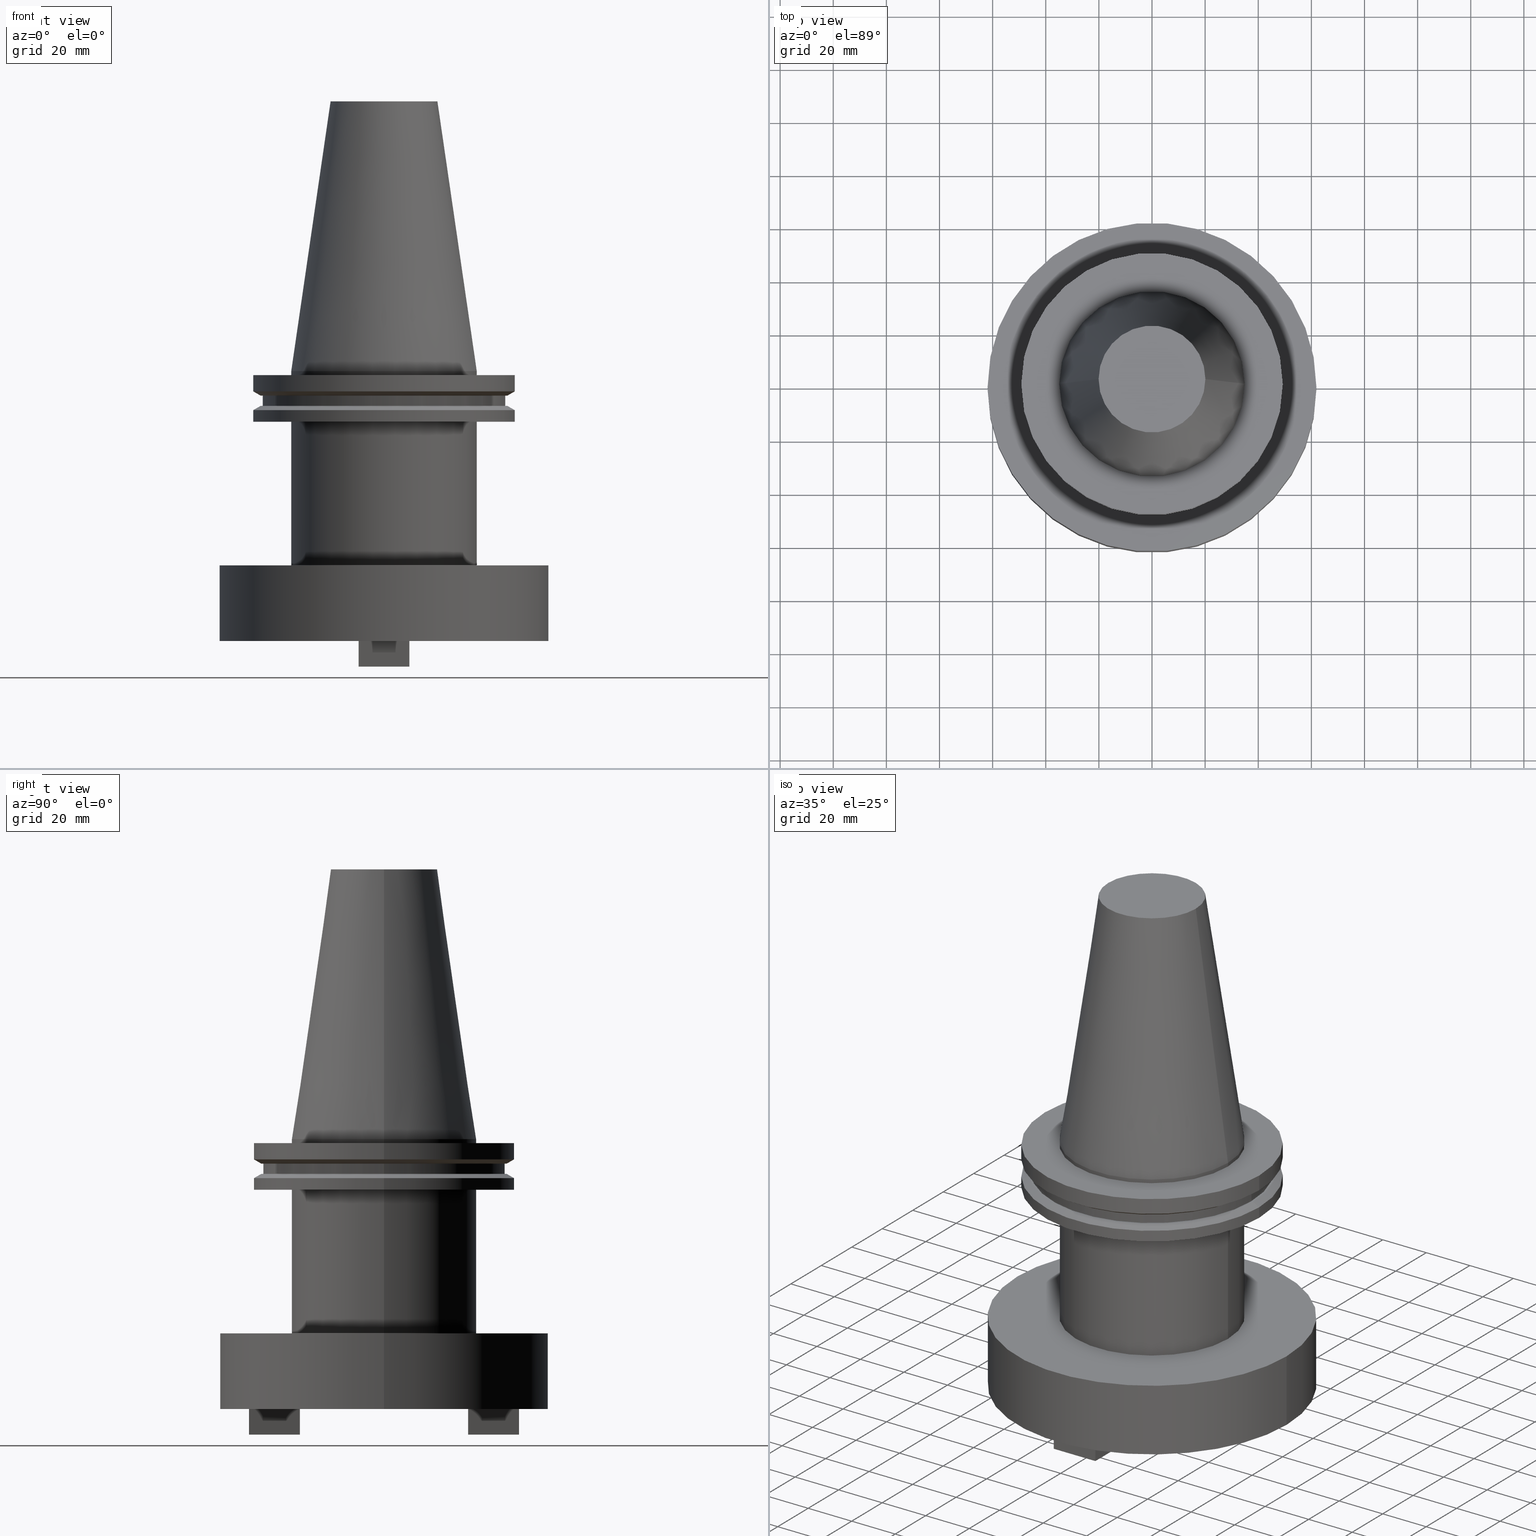
[diagram: canonical four-view strip — front | top / right | iso, engineering-drawing reading convention]
A machine part, canonical four-view strip (front | top / right | iso — engineering-drawing reading convention). The complete STEP part file that produces these views, byte-faithful:
ISO-10303-21;
HEADER;
FILE_DESCRIPTION (( 'STEP AP203' ),
    '1' );
FILE_NAME ('BCV50-SMC2_000-4.stp',
    '2022-03-03T20:26:04',
    ( '' ),
    ( '' ),
    'SwSTEP 2.0',
    'SolidWorks 2021',
    '' );
FILE_SCHEMA (( 'CONFIG_CONTROL_DESIGN' ));
ENDSEC;

DATA;
#1 = DIRECTION ( 'NONE',  ( -0.000000000000000000, -0.000000000000000000, 1.000000000000000000 ) ) ;
#2 = DIRECTION ( 'NONE',  ( -0.000000000000000000, -0.000000000000000000, 1.000000000000000000 ) ) ;
#3 = ORIENTED_EDGE ( 'NONE', *, *, #573, .F. ) ;
#4 = EDGE_CURVE ( 'NONE', #1054, #429, #1020, .T. ) ;
#5 = LINE ( 'NONE', #676, #905 ) ;
#6 = CARTESIAN_POINT ( 'NONE',  ( 0.000000000000000000, 0.000000000000000000, 101.5999999999999943 ) ) ;
#7 = LINE ( 'NONE', #916, #207 ) ;
#8 = EDGE_LOOP ( 'NONE', ( #155, #832 ) ) ;
#9 = DIRECTION ( 'NONE',  ( -0.000000000000000000, -0.000000000000000000, 1.000000000000000000 ) ) ;
#10 = VECTOR ( 'NONE', #565, 1000.000000000000000 ) ;
#11 = CARTESIAN_POINT ( 'NONE',  ( 0.000000000000000000, 45.64500000000000313, -13.05499999999999794 ) ) ;
#12 = CONICAL_SURFACE ( 'NONE', #1036, 46.43919780457007818, 1.047197551196575205 ) ;
#13 = CIRCLE ( 'NONE', #634, 61.89999999999999858 ) ;
#14 = LINE ( 'NONE', #791, #816 ) ;
#15 = CC_DESIGN_APPROVAL ( #235, ( #601 ) ) ;
#16 = FACE_OUTER_BOUND ( 'NONE', #516, .T. ) ;
#17 = ORIENTED_EDGE ( 'NONE', *, *, #388, .F. ) ;
#18 = CC_DESIGN_DATE_AND_TIME_ASSIGNMENT ( #992, #569, ( #687 ) ) ;
#19 = FACE_OUTER_BOUND ( 'NONE', #552, .T. ) ;
#20 = EDGE_CURVE ( 'NONE', #822, #290, #525, .T. ) ;
#21 = DIRECTION ( 'NONE',  ( -0.000000000000000000, -0.000000000000000000, 1.000000000000000000 ) ) ;
#22 = ORIENTED_EDGE ( 'NONE', *, *, #795, .T. ) ;
#23 = ORIENTED_EDGE ( 'NONE', *, *, #721, .T. ) ;
#24 = LINE ( 'NONE', #513, #85 ) ;
#25 = ORIENTED_EDGE ( 'NONE', *, *, #394, .F. ) ;
#26 = CARTESIAN_POINT ( 'NONE',  ( 0.000000000000000000, 0.000000000000000000, 101.5999999999999943 ) ) ;
#27 = FACE_OUTER_BOUND ( 'NONE', #373, .T. ) ;
#28 = ORIENTED_EDGE ( 'NONE', *, *, #122, .F. ) ;
#29 = CARTESIAN_POINT ( 'NONE',  ( -34.92499999999999005, 4.277078946022130098E-15, -1.499999999999987566 ) ) ;
#30 = DIRECTION ( 'NONE',  ( 0.000000000000000000, 0.000000000000000000, -1.000000000000000000 ) ) ;
#31 = EDGE_CURVE ( 'NONE', #1050, #336, #14, .T. ) ;
#32 = CIRCLE ( 'NONE', #84, 34.92499999999999716 ) ;
#33 = DIRECTION ( 'NONE',  ( 1.000000000000000000, 0.000000000000000000, 0.000000000000000000 ) ) ;
#34 = AXIS2_PLACEMENT_3D ( 'NONE', #431, #163, #1023 ) ;
#35 = ORIENTED_EDGE ( 'NONE', *, *, #868, .F. ) ;
#36 = AXIS2_PLACEMENT_3D ( 'NONE', #479, #326, #482 ) ;
#37 = CARTESIAN_POINT ( 'NONE',  ( -9.562499999999994671, 31.68750000000003553, -101.5999999999999943 ) ) ;
#38 = LINE ( 'NONE', #616, #345 ) ;
#39 = ORIENTED_EDGE ( 'NONE', *, *, #489, .F. ) ;
#40 = ADVANCED_FACE ( 'NONE', ( #962, #551 ), #968, .F. ) ;
#41 = CARTESIAN_POINT ( 'NONE',  ( 0.000000000000000000, 0.000000000000000000, -1.499999999999987566 ) ) ;
#42 = DIRECTION ( 'NONE',  ( 0.000000000000000000, 0.000000000000000000, 1.000000000000000000 ) ) ;
#43 = CYLINDRICAL_SURFACE ( 'NONE', #610, 49.21499999999998920 ) ;
#44 = EDGE_LOOP ( 'NONE', ( #25, #39 ) ) ;
#45 = CC_DESIGN_PERSON_AND_ORGANIZATION_ASSIGNMENT ( #66, #405, ( #404 ) ) ;
#46 = CARTESIAN_POINT ( 'NONE',  ( 0.000000000000000000, 0.000000000000000000, -14.65761014474876944 ) ) ;
#47 = DESIGN_CONTEXT ( 'detailed design', #693, 'design' ) ;
#48 = CC_DESIGN_SECURITY_CLASSIFICATION ( #687, ( #404 ) ) ;
#49 = FACE_OUTER_BOUND ( 'NONE', #777, .T. ) ;
#50 = EDGE_LOOP ( 'NONE', ( #35, #81, #740, #365 ) ) ;
#51 = AXIS2_PLACEMENT_3D ( 'NONE', #251, #931, #175 ) ;
#52 = DIRECTION ( 'NONE',  ( -0.000000000000000000, -0.000000000000000000, 1.000000000000000000 ) ) ;
#53 = ADVANCED_FACE ( 'NONE', ( #49 ), #43, .T. ) ;
#54 = DIRECTION ( 'NONE',  ( 1.000000000000000000, 0.000000000000000000, 0.000000000000000000 ) ) ;
#55 = ORIENTED_EDGE ( 'NONE', *, *, #510, .T. ) ;
#56 = DIRECTION ( 'NONE',  ( 1.814089909518229359E-16, -1.000000000000000000, -0.000000000000000000 ) ) ;
#57 = DIRECTION ( 'NONE',  ( 1.000000000000000000, 0.000000000000000000, 0.000000000000000000 ) ) ;
#58 = ORIENTED_EDGE ( 'NONE', *, *, #364, .F. ) ;
#59 = CARTESIAN_POINT ( 'NONE',  ( 0.000000000000000000, 0.000000000000000000, -35.00000000000000000 ) ) ;
#60 = DIRECTION ( 'NONE',  ( -0.000000000000000000, -0.000000000000000000, 1.000000000000000000 ) ) ;
#61 = APPROVAL ( #828, 'UNSPECIFIED' ) ;
#62 = VERTEX_POINT ( 'NONE', #456 ) ;
#63 = CIRCLE ( 'NONE', #459, 34.92499999999999716 ) ;
#64 = AXIS2_PLACEMENT_3D ( 'NONE', #469, #637, #956 ) ;
#65 = AXIS2_PLACEMENT_3D ( 'NONE', #440, #523, #435 ) ;
#66 = PERSON_AND_ORGANIZATION ( #617, #281 ) ;
#67 = LOCAL_TIME ( 14, 26, 4.000000000000000000, #815 ) ;
#68 = FACE_OUTER_BOUND ( 'NONE', #578, .T. ) ;
#69 = DIRECTION ( 'NONE',  ( 1.000000000000000000, 0.000000000000000000, 0.000000000000000000 ) ) ;
#70 = ORIENTED_EDGE ( 'NONE', *, *, #650, .F. ) ;
#71 = ADVANCED_FACE ( 'NONE', ( #385 ), #534, .T. ) ;
#72 = DIRECTION ( 'NONE',  ( 1.000000000000000000, 0.000000000000000000, 0.000000000000000000 ) ) ;
#73 = ADVANCED_FACE ( 'NONE', ( #372 ), #1046, .T. ) ;
#74 = APPROVAL_DATE_TIME ( #145, #61 ) ;
#75 = ORIENTED_EDGE ( 'NONE', *, *, #1085, .F. ) ;
#76 = FACE_BOUND ( 'NONE', #1025, .T. ) ;
#77 = ORIENTED_EDGE ( 'NONE', *, *, #273, .T. ) ;
#78 = DIRECTION ( 'NONE',  ( -1.000000000000000000, 0.000000000000000000, 0.000000000000000000 ) ) ;
#79 = COORDINATED_UNIVERSAL_TIME_OFFSET ( 6, 0, .BEHIND. ) ;
#80 = FACE_BOUND ( 'NONE', #766, .T. ) ;
#81 = ORIENTED_EDGE ( 'NONE', *, *, #658, .T. ) ;
#82 = DIRECTION ( 'NONE',  ( 1.000000000000000000, 0.000000000000000000, 0.000000000000000000 ) ) ;
#83 = PERSON_AND_ORGANIZATION ( #617, #281 ) ;
#84 = AXIS2_PLACEMENT_3D ( 'NONE', #983, #60, #146 ) ;
#85 = VECTOR ( 'NONE', #9, 1000.000000000000000 ) ;
#86 = EDGE_CURVE ( 'NONE', #1004, #269, #963, .T. ) ;
#87 = CARTESIAN_POINT ( 'NONE',  ( -45.64500000000000313, 5.589900314708094957E-15, -9.204999999999991189 ) ) ;
#88 = AXIS2_PLACEMENT_3D ( 'NONE', #902, #726, #810 ) ;
#89 = CARTESIAN_POINT ( 'NONE',  ( -49.21499999999999631, 6.027099222003697826E-15, 101.5999999999999943 ) ) ;
#90 = EDGE_CURVE ( 'NONE', #1047, #233, #232, .T. ) ;
#91 = EDGE_LOOP ( 'NONE', ( #548, #867, #200, #1078 ) ) ;
#92 = DIRECTION ( 'NONE',  ( 1.000000000000000000, 0.000000000000000000, 0.000000000000000000 ) ) ;
#93 = LINE ( 'NONE', #782, #109 ) ;
#94 = DIRECTION ( 'NONE',  ( -1.000000000000000000, 0.000000000000000000, -0.000000000000000000 ) ) ;
#95 = ORIENTED_EDGE ( 'NONE', *, *, #934, .F. ) ;
#96 = ORIENTED_EDGE ( 'NONE', *, *, #658, .F. ) ;
#97 = CARTESIAN_POINT ( 'NONE',  ( 0.000000000000000000, 0.000000000000000000, -13.05499999999999794 ) ) ;
#98 = ORIENTED_EDGE ( 'NONE', *, *, #130, .T. ) ;
#99 = DIRECTION ( 'NONE',  ( 0.8660254037844169472, 1.060575238724880168E-16, -0.5000000000000375255 ) ) ;
#100 = VERTEX_POINT ( 'NONE', #407 ) ;
#101 = ORIENTED_EDGE ( 'NONE', *, *, #364, .T. ) ;
#102 = EDGE_CURVE ( 'NONE', #126, #514, #889, .T. ) ;
#103 = CARTESIAN_POINT ( 'NONE',  ( 34.92499999999999716, 0.000000000000000000, -19.04999999999999716 ) ) ;
#104 = ORIENTED_EDGE ( 'NONE', *, *, #102, .F. ) ;
#105 = VECTOR ( 'NONE', #660, 1000.000000000000000 ) ;
#106 = FACE_OUTER_BOUND ( 'NONE', #535, .T. ) ;
#107 = CARTESIAN_POINT ( 'NONE',  ( 0.000000000000000000, 0.000000000000000000, -101.5999999999999943 ) ) ;
#108 = AXIS2_PLACEMENT_3D ( 'NONE', #680, #1, #82 ) ;
#109 = VECTOR ( 'NONE', #447, 1000.000000000000000 ) ;
#110 = EDGE_LOOP ( 'NONE', ( #746, #915, #722, #519 ) ) ;
#111 = PLANE ( 'NONE',  #592 ) ;
#112 = DIRECTION ( 'NONE',  ( 1.000000000000000000, 0.000000000000000000, 0.000000000000000000 ) ) ;
#113 = DIRECTION ( 'NONE',  ( -0.000000000000000000, -0.000000000000000000, 1.000000000000000000 ) ) ;
#114 = CARTESIAN_POINT ( 'NONE',  ( 9.562499999999998224, -50.81250000000003553, -111.2500000000000000 ) ) ;
#115 =( LENGTH_UNIT ( ) NAMED_UNIT ( * ) SI_UNIT ( .MILLI., .METRE. ) );
#116 = FACE_OUTER_BOUND ( 'NONE', #785, .T. ) ;
#117 = ORIENTED_EDGE ( 'NONE', *, *, #979, .T. ) ;
#118 = DIRECTION ( 'NONE',  ( 1.000000000000000000, 0.000000000000000000, 0.000000000000000000 ) ) ;
#119 = DIRECTION ( 'NONE',  ( -1.000000000000000000, 0.000000000000000000, 0.000000000000000000 ) ) ;
#120 = AXIS2_PLACEMENT_3D ( 'NONE', #1079, #393, #131 ) ;
#121 = AXIS2_PLACEMENT_3D ( 'NONE', #129, #52, #374 ) ;
#122 = EDGE_CURVE ( 'NONE', #238, #500, #994, .T. ) ;
#123 = ORIENTED_EDGE ( 'NONE', *, *, #139, .T. ) ;
#124 = AXIS2_PLACEMENT_3D ( 'NONE', #406, #1072, #663 ) ;
#125 = CARTESIAN_POINT ( 'NONE',  ( -9.562499999999998224, 50.81250000000000000, -101.5999999999999943 ) ) ;
#126 = VERTEX_POINT ( 'NONE', #571 ) ;
#127 = DIRECTION ( 'NONE',  ( 0.000000000000000000, 0.000000000000000000, -1.000000000000000000 ) ) ;
#128 = ORIENTED_EDGE ( 'NONE', *, *, #90, .T. ) ;
#129 = CARTESIAN_POINT ( 'NONE',  ( 0.000000000000000000, 0.000000000000000000, -9.204999999999991189 ) ) ;
#130 = EDGE_CURVE ( 'NONE', #441, #952, #228, .T. ) ;
#131 = DIRECTION ( 'NONE',  ( 1.000000000000000000, 0.000000000000000000, 0.000000000000000000 ) ) ;
#132 = CIRCLE ( 'NONE', #1061, 34.92499999999999005 ) ;
#133 = VERTEX_POINT ( 'NONE', #739 ) ;
#134 = AXIS2_PLACEMENT_3D ( 'NONE', #46, #127, #294 ) ;
#135 = VERTEX_POINT ( 'NONE', #1056 ) ;
#136 = DIRECTION ( 'NONE',  ( 0.000000000000000000, -0.000000000000000000, 1.000000000000000000 ) ) ;
#137 = ORIENTED_EDGE ( 'NONE', *, *, #736, .T. ) ;
#138 = FACE_OUTER_BOUND ( 'NONE', #624, .T. ) ;
#139 = EDGE_CURVE ( 'NONE', #133, #792, #808, .T. ) ;
#140 = APPROVAL_ROLE ( '' ) ;
#141 = CARTESIAN_POINT ( 'NONE',  ( 0.000000000000000000, 0.000000000000000000, 101.5999999999999943 ) ) ;
#142 = DIRECTION ( 'NONE',  ( 1.000000000000000000, 0.000000000000000000, 0.000000000000000000 ) ) ;
#143 = VERTEX_POINT ( 'NONE', #389 ) ;
#144 = DIRECTION ( 'NONE',  ( 0.000000000000000000, -1.000000000000000000, 0.000000000000000000 ) ) ;
#145 = DATE_AND_TIME ( #757, #67 ) ;
#146 = DIRECTION ( 'NONE',  ( 1.000000000000000000, 0.000000000000000000, 0.000000000000000000 ) ) ;
#147 = EDGE_CURVE ( 'NONE', #952, #884, #324, .T. ) ;
#148 = ORIENTED_EDGE ( 'NONE', *, *, #729, .T. ) ;
#149 = DIRECTION ( 'NONE',  ( 1.000000000000000000, 0.000000000000000000, 0.000000000000000000 ) ) ;
#150 = CIRCLE ( 'NONE', #612, 49.21499999999998920 ) ;
#151 = DATE_AND_TIME ( #899, #635 ) ;
#152 = LINE ( 'NONE', #1000, #260 ) ;
#153 = CARTESIAN_POINT ( 'NONE',  ( 11.90499999999999936, 0.000000000000000000, 0.000000000000000000 ) ) ;
#154 = CC_DESIGN_PERSON_AND_ORGANIZATION_ASSIGNMENT ( #83, #157, ( #601 ) ) ;
#155 = ORIENTED_EDGE ( 'NONE', *, *, #895, .T. ) ;
#156 = CARTESIAN_POINT ( 'NONE',  ( 0.000000000000000000, 0.000000000000000000, -111.2500000000000000 ) ) ;
#157 = PERSON_AND_ORGANIZATION_ROLE ( 'creator' ) ;
#158 = DIRECTION ( 'NONE',  ( -0.000000000000000000, -0.000000000000000000, 1.000000000000000000 ) ) ;
#159 = ORIENTED_EDGE ( 'NONE', *, *, #751, .T. ) ;
#160 = LINE ( 'NONE', #499, #704 ) ;
#161 = PRODUCT ( 'BCV50-SMC2_000-4', 'BCV50-SMC2_000-4', '', ( #638 ) ) ;
#162 = EDGE_LOOP ( 'NONE', ( #929, #672 ) ) ;
#163 = DIRECTION ( 'NONE',  ( -0.000000000000000000, -0.000000000000000000, 1.000000000000000000 ) ) ;
#164 = EDGE_CURVE ( 'NONE', #941, #822, #217, .T. ) ;
#165 = DIRECTION ( 'NONE',  ( -1.000000000000000000, 7.256359638072921381E-16, 0.000000000000000000 ) ) ;
#166 = DIRECTION ( 'NONE',  ( -1.000000000000000000, 0.000000000000000000, -0.000000000000000000 ) ) ;
#167 = ORIENTED_EDGE ( 'NONE', *, *, #265, .F. ) ;
#168 = DIRECTION ( 'NONE',  ( 1.000000000000000000, 0.000000000000000000, 0.000000000000000000 ) ) ;
#169 = CIRCLE ( 'NONE', #309, 34.92500000000000426 ) ;
#170 = CIRCLE ( 'NONE', #572, 49.21500000000000341 ) ;
#171 = AXIS2_PLACEMENT_3D ( 'NONE', #912, #1074, #411 ) ;
#172 = FACE_OUTER_BOUND ( 'NONE', #1089, .T. ) ;
#173 = EDGE_LOOP ( 'NONE', ( #286, #358, #653, #451 ) ) ;
#174 = EDGE_LOOP ( 'NONE', ( #98, #629, #964, #376 ) ) ;
#175 = DIRECTION ( 'NONE',  ( 1.000000000000000000, 0.000000000000000000, 0.000000000000000000 ) ) ;
#176 = ADVANCED_FACE ( 'NONE', ( #328 ), #398, .T. ) ;
#177 = CARTESIAN_POINT ( 'NONE',  ( 45.64500000000000313, 0.000000000000000000, -13.05499999999999794 ) ) ;
#178 = DIRECTION ( 'NONE',  ( 1.000000000000000000, 0.000000000000000000, 0.000000000000000000 ) ) ;
#179 = ORIENTED_EDGE ( 'NONE', *, *, #526, .F. ) ;
#180 = EDGE_CURVE ( 'NONE', #649, #707, #908, .T. ) ;
#181 = DIRECTION ( 'NONE',  ( -3.628179819036460691E-16, -1.000000000000000000, 0.000000000000000000 ) ) ;
#182 = VERTEX_POINT ( 'NONE', #665 ) ;
#183 = DIRECTION ( 'NONE',  ( 1.000000000000000000, 0.000000000000000000, 0.000000000000000000 ) ) ;
#184 = DIRECTION ( 'NONE',  ( -0.000000000000000000, -0.000000000000000000, 1.000000000000000000 ) ) ;
#185 = VERTEX_POINT ( 'NONE', #473 ) ;
#186 = EDGE_CURVE ( 'NONE', #792, #884, #308, .T. ) ;
#187 = ORIENTED_EDGE ( 'NONE', *, *, #991, .T. ) ;
#188 = CARTESIAN_POINT ( 'NONE',  ( 0.000000000000000000, 0.000000000000000000, -13.05499999999999794 ) ) ;
#189 = SHAPE_DEFINITION_REPRESENTATION ( #666, #422 ) ;
#190 = EDGE_LOOP ( 'NONE', ( #96, #474, #692, #344 ) ) ;
#191 = AXIS2_PLACEMENT_3D ( 'NONE', #199, #953, #870 ) ;
#192 = FACE_OUTER_BOUND ( 'NONE', #8, .T. ) ;
#193 = DIRECTION ( 'NONE',  ( -9.070449547591151727E-17, 1.000000000000000000, 0.000000000000000000 ) ) ;
#194 = AXIS2_PLACEMENT_3D ( 'NONE', #938, #520, #112 ) ;
#195 = ORIENTED_EDGE ( 'NONE', *, *, #164, .T. ) ;
#196 = ORIENTED_EDGE ( 'NONE', *, *, #851, .T. ) ;
#197 = DIRECTION ( 'NONE',  ( 1.000000000000000000, -3.628179819036460691E-16, -0.000000000000000000 ) ) ;
#198 = EDGE_LOOP ( 'NONE', ( #1037, #862, #354, #760 ) ) ;
#199 = CARTESIAN_POINT ( 'NONE',  ( 0.000000000000000000, 0.000000000000000000, -19.04999999999999716 ) ) ;
#200 = ORIENTED_EDGE ( 'NONE', *, *, #4, .T. ) ;
#201 = DIRECTION ( 'NONE',  ( 0.000000000000000000, -1.000000000000000000, 0.000000000000000000 ) ) ;
#202 = EDGE_CURVE ( 'NONE', #449, #649, #804, .T. ) ;
#203 = EDGE_CURVE ( 'NONE', #701, #514, #480, .T. ) ;
#204 = FACE_OUTER_BOUND ( 'NONE', #50, .T. ) ;
#205 = ORIENTED_EDGE ( 'NONE', *, *, #526, .T. ) ;
#206 = DIRECTION ( 'NONE',  ( -0.000000000000000000, -0.000000000000000000, 1.000000000000000000 ) ) ;
#207 = VECTOR ( 'NONE', #1012, 1000.000000000000000 ) ;
#208 = VECTOR ( 'NONE', #771, 1000.000000000000000 ) ;
#209 = VECTOR ( 'NONE', #303, 1000.000000000000000 ) ;
#210 = ORIENTED_EDGE ( 'NONE', *, *, #605, .T. ) ;
#211 = LOCAL_TIME ( 14, 26, 4.000000000000000000, #737 ) ;
#212 = CARTESIAN_POINT ( 'NONE',  ( 61.89999999999999858, 0.000000000000000000, 0.000000000000000000 ) ) ;
#213 = EDGE_CURVE ( 'NONE', #293, #255, #543, .T. ) ;
#214 = ADVANCED_FACE ( 'NONE', ( #825, #221, #76, #415 ), #558, .F. ) ;
#215 = ORIENTED_EDGE ( 'NONE', *, *, #213, .F. ) ;
#216 = LINE ( 'NONE', #471, #706 ) ;
#217 = LINE ( 'NONE', #562, #105 ) ;
#218 = EDGE_CURVE ( 'NONE', #600, #233, #32, .T. ) ;
#219 = ORIENTED_EDGE ( 'NONE', *, *, #844, .F. ) ;
#220 = DIRECTION ( 'NONE',  ( -0.000000000000000000, -0.000000000000000000, 1.000000000000000000 ) ) ;
#221 = FACE_OUTER_BOUND ( 'NONE', #813, .T. ) ;
#222 = VECTOR ( 'NONE', #642, 1000.000000000000000 ) ;
#223 = ORIENTED_EDGE ( 'NONE', *, *, #812, .F. ) ;
#224 = AXIS2_PLACEMENT_3D ( 'NONE', #518, #501, #264 ) ;
#225 = FACE_OUTER_BOUND ( 'NONE', #390, .T. ) ;
#226 = VECTOR ( 'NONE', #144, 1000.000000000000000 ) ;
#227 = PERSON_AND_ORGANIZATION_ROLE ( 'creator' ) ;
#228 = LINE ( 'NONE', #900, #399 ) ;
#229 = ORIENTED_EDGE ( 'NONE', *, *, #674, .F. ) ;
#230 = EDGE_CURVE ( 'NONE', #293, #822, #745, .T. ) ;
#231 = DIRECTION ( 'NONE',  ( 1.000000000000000000, 0.000000000000000000, 0.000000000000000000 ) ) ;
#232 = LINE ( 'NONE', #484, #978 ) ;
#233 = VERTEX_POINT ( 'NONE', #759 ) ;
#234 = DIRECTION ( 'NONE',  ( -0.000000000000000000, -0.000000000000000000, 1.000000000000000000 ) ) ;
#235 = APPROVAL ( #583, 'UNSPECIFIED' ) ;
#236 = PLANE ( 'NONE',  #124 ) ;
#237 = DIRECTION ( 'NONE',  ( -0.000000000000000000, -0.000000000000000000, 1.000000000000000000 ) ) ;
#238 = VERTEX_POINT ( 'NONE', #939 ) ;
#239 = VECTOR ( 'NONE', #886, 1000.000000000000000 ) ;
#240 = VECTOR ( 'NONE', #360, 1000.000000000000000 ) ;
#241 = AXIS2_PLACEMENT_3D ( 'NONE', #312, #475, #403 ) ;
#242 = APPROVAL_DATE_TIME ( #151, #235 ) ;
#243 = PLANE ( 'NONE',  #463 ) ;
#244 = ORIENTED_EDGE ( 'NONE', *, *, #880, .T. ) ;
#245 = FACE_OUTER_BOUND ( 'NONE', #162, .T. ) ;
#246 = ORIENTED_EDGE ( 'NONE', *, *, #1076, .T. ) ;
#247 = EDGE_CURVE ( 'NONE', #701, #948, #998, .T. ) ;
#248 = CARTESIAN_POINT ( 'NONE',  ( -9.562499999999996447, -50.81250000000002132, -101.5999999999999943 ) ) ;
#249 = CARTESIAN_POINT ( 'NONE',  ( -46.43919780457007818, 0.000000000000000000, -13.05499999999999794 ) ) ;
#250 = ORIENTED_EDGE ( 'NONE', *, *, #496, .F. ) ;
#251 = CARTESIAN_POINT ( 'NONE',  ( 0.000000000000000000, 49.21499999999998920, -19.04999999999999716 ) ) ;
#252 = APPROVAL_DATE_TIME ( #943, #909 ) ;
#253 = CARTESIAN_POINT ( 'NONE',  ( 49.21499999999998920, 0.000000000000000000, -19.04999999999999716 ) ) ;
#254 = FACE_BOUND ( 'NONE', #936, .T. ) ;
#255 = VERTEX_POINT ( 'NONE', #249 ) ;
#256 = EDGE_CURVE ( 'NONE', #416, #441, #7, .T. ) ;
#257 = VECTOR ( 'NONE', #896, 1000.000000000000000 ) ;
#258 = DIRECTION ( 'NONE',  ( 1.000000000000000000, -3.628179819036460691E-16, 0.000000000000000000 ) ) ;
#259 = VECTOR ( 'NONE', #425, 1000.000000000000000 ) ;
#260 = VECTOR ( 'NONE', #830, 1000.000000000000114 ) ;
#261 = CIRCLE ( 'NONE', #966, 20.10819343178871321 ) ;
#262 = FACE_OUTER_BOUND ( 'NONE', #715, .T. ) ;
#263 = CARTESIAN_POINT ( 'NONE',  ( 45.64500000000000313, 0.000000000000000000, 101.5999999999999943 ) ) ;
#264 = DIRECTION ( 'NONE',  ( 1.000000000000000000, 0.000000000000000000, 0.000000000000000000 ) ) ;
#265 = EDGE_CURVE ( 'NONE', #1050, #585, #132, .T. ) ;
#266 = CARTESIAN_POINT ( 'NONE',  ( 0.000000000000000000, 49.21499999999999631, -1.499999999999992895 ) ) ;
#267 = CARTESIAN_POINT ( 'NONE',  ( -20.10819343178871321, 0.000000000000000000, 101.5999999999999801 ) ) ;
#268 = ADVANCED_FACE ( 'NONE', ( #80, #245 ), #584, .F. ) ;
#269 = VERTEX_POINT ( 'NONE', #849 ) ;
#270 = CARTESIAN_POINT ( 'NONE',  ( 0.000000000000000000, 0.000000000000000000, -19.04999999999999716 ) ) ;
#271 = DIRECTION ( 'NONE',  ( -1.814089909518232317E-16, 1.000000000000000000, 0.000000000000000000 ) ) ;
#272 = CARTESIAN_POINT ( 'NONE',  ( 9.562499999999998224, -50.81250000000002842, -101.5999999999999943 ) ) ;
#273 = EDGE_CURVE ( 'NONE', #1001, #310, #750, .T. ) ;
#274 = ORIENTED_EDGE ( 'NONE', *, *, #247, .F. ) ;
#275 = CARTESIAN_POINT ( 'NONE',  ( 0.000000000000000000, 0.000000000000000000, -73.09999999999999432 ) ) ;
#276 = ORIENTED_EDGE ( 'NONE', *, *, #784, .T. ) ;
#277 = AXIS2_PLACEMENT_3D ( 'NONE', #628, #724, #57 ) ;
#278 = FACE_BOUND ( 'NONE', #763, .T. ) ;
#279 = CARTESIAN_POINT ( 'NONE',  ( 0.000000000000000000, 0.000000000000000000, 0.000000000000000000 ) ) ;
#280 = AXIS2_PLACEMENT_3D ( 'NONE', #275, #866, #381 ) ;
#281 = ORGANIZATION ( 'UNSPECIFIED', 'UNSPECIFIED', '' ) ;
#282 = CARTESIAN_POINT ( 'NONE',  ( 0.000000000000000000, 0.000000000000000000, 101.5999999999999943 ) ) ;
#283 = ORIENTED_EDGE ( 'NONE', *, *, #539, .F. ) ;
#284 = ADVANCED_FACE ( 'NONE', ( #254, #172 ), #509, .F. ) ;
#285 = CARTESIAN_POINT ( 'NONE',  ( -9.562499999999998224, 50.81250000000000711, -111.2500000000000000 ) ) ;
#286 = ORIENTED_EDGE ( 'NONE', *, *, #147, .F. ) ;
#287 = LINE ( 'NONE', #869, #1002 ) ;
#288 = DIRECTION ( 'NONE',  ( 1.000000000000000000, 0.000000000000000000, 0.000000000000000000 ) ) ;
#289 = CARTESIAN_POINT ( 'NONE',  ( 0.000000000000000000, 0.000000000000000000, 101.5999999999999943 ) ) ;
#290 = VERTEX_POINT ( 'NONE', #448 ) ;
#291 = LINE ( 'NONE', #212, #544 ) ;
#292 = UNCERTAINTY_MEASURE_WITH_UNIT (LENGTH_MEASURE( 1.000000000000000082E-05 ), #115, 'distance_accuracy_value', 'NONE');
#293 = VERTEX_POINT ( 'NONE', #588 ) ;
#294 = DIRECTION ( 'NONE',  ( -1.000000000000000000, 0.000000000000000000, 0.000000000000000000 ) ) ;
#295 = ADVANCED_FACE ( 'NONE', ( #343 ), #1024, .F. ) ;
#296 = VECTOR ( 'NONE', #1048, 999.9999999999998863 ) ;
#297 = DIRECTION ( 'NONE',  ( -0.000000000000000000, -0.000000000000000000, 1.000000000000000000 ) ) ;
#298 = AXIS2_PLACEMENT_3D ( 'NONE', #1086, #993, #492 ) ;
#299 = ORIENTED_EDGE ( 'NONE', *, *, #180, .T. ) ;
#300 = FACE_OUTER_BOUND ( 'NONE', #717, .T. ) ;
#301 = CARTESIAN_POINT ( 'NONE',  ( 0.000000000000000000, 0.000000000000000000, 0.000000000000000000 ) ) ;
#302 = ORIENTED_EDGE ( 'NONE', *, *, #1069, .F. ) ;
#303 = DIRECTION ( 'NONE',  ( -0.8660254037844273833, 1.060575238724893110E-16, 0.5000000000000195399 ) ) ;
#304 = CARTESIAN_POINT ( 'NONE',  ( -9.562499999999996447, -50.81250000000002132, -111.2500000000000000 ) ) ;
#305 = VERTEX_POINT ( 'NONE', #267 ) ;
#306 = CARTESIAN_POINT ( 'NONE',  ( 0.000000000000000000, 0.000000000000000000, -9.204999999999991189 ) ) ;
#307 = PERSON_AND_ORGANIZATION ( #617, #281 ) ;
#308 = LINE ( 'NONE', #820, #485 ) ;
#309 = AXIS2_PLACEMENT_3D ( 'NONE', #1017, #184, #339 ) ;
#310 = VERTEX_POINT ( 'NONE', #603 ) ;
#311 = AXIS2_PLACEMENT_3D ( 'NONE', #877, #797, #800 ) ;
#312 = CARTESIAN_POINT ( 'NONE',  ( 9.562499999999998224, 50.81250000000001421, -111.2500000000000000 ) ) ;
#313 = CIRCLE ( 'NONE', #982, 49.21499999999999631 ) ;
#314 = EDGE_CURVE ( 'NONE', #1047, #796, #169, .T. ) ;
#315 = SECURITY_CLASSIFICATION_LEVEL ( 'unclassified' ) ;
#316 = CARTESIAN_POINT ( 'NONE',  ( 0.000000000000000000, 0.000000000000000000, -1.499999999999987566 ) ) ;
#317 = DIRECTION ( 'NONE',  ( -1.000000000000000000, 7.256359638072920395E-16, 0.000000000000000000 ) ) ;
#318 = EDGE_LOOP ( 'NONE', ( #493, #205, #781, #433 ) ) ;
#319 = CARTESIAN_POINT ( 'NONE',  ( -9.562499999999998224, -31.68750000000002842, -111.2500000000000000 ) ) ;
#320 = ADVANCED_FACE ( 'NONE', ( #351 ), #521, .F. ) ;
#321 = CALENDAR_DATE ( 2022, 3, 3 ) ;
#322 = DIRECTION ( 'NONE',  ( -0.000000000000000000, -0.000000000000000000, 1.000000000000000000 ) ) ;
#323 = ORIENTED_EDGE ( 'NONE', *, *, #180, .F. ) ;
#324 = LINE ( 'NONE', #554, #222 ) ;
#325 = ORIENTED_EDGE ( 'NONE', *, *, #807, .T. ) ;
#326 = DIRECTION ( 'NONE',  ( -0.000000000000000000, -0.000000000000000000, 1.000000000000000000 ) ) ;
#327 = DIRECTION ( 'NONE',  ( -0.000000000000000000, -0.000000000000000000, 1.000000000000000000 ) ) ;
#328 = FACE_OUTER_BOUND ( 'NONE', #318, .T. ) ;
#329 = EDGE_CURVE ( 'NONE', #233, #600, #63, .T. ) ;
#330 = ORIENTED_EDGE ( 'NONE', *, *, #378, .T. ) ;
#331 = CLOSED_SHELL ( 'NONE', ( #452, #320, #71, #969, #689, #413, #627, #1057, #918, #427, #214, #462, #911, #73, #587, #53, #609, #284, #1042, #40, #673, #176, #1049, #840, #764, #995, #268, #1015, #1045, #773, #295, #940, #879, #434, #468, #686, #538, #348 ) ) ;
#332 = CARTESIAN_POINT ( 'NONE',  ( 0.000000000000000000, 0.000000000000000000, 101.5999999999999943 ) ) ;
#333 = CIRCLE ( 'NONE', #108, 34.92499999999999005 ) ;
#334 = DIRECTION ( 'NONE',  ( 7.256359638072921381E-16, 1.000000000000000000, 0.000000000000000000 ) ) ;
#335 = PLANE ( 'NONE',  #856 ) ;
#336 = VERTEX_POINT ( 'NONE', #432 ) ;
#337 = PLANE ( 'NONE',  #65 ) ;
#338 = CARTESIAN_POINT ( 'NONE',  ( 34.92499999999999005, 0.000000000000000000, -1.499999999999987566 ) ) ;
#339 = DIRECTION ( 'NONE',  ( 1.000000000000000000, 0.000000000000000000, 0.000000000000000000 ) ) ;
#340 = EDGE_CURVE ( 'NONE', #367, #290, #926, .T. ) ;
#341 = ORIENTED_EDGE ( 'NONE', *, *, #991, .F. ) ;
#342 = CARTESIAN_POINT ( 'NONE',  ( 46.43919780457007818, 0.000000000000000000, -9.204999999999991189 ) ) ;
#343 = FACE_OUTER_BOUND ( 'NONE', #1068, .T. ) ;
#344 = ORIENTED_EDGE ( 'NONE', *, *, #883, .T. ) ;
#345 = VECTOR ( 'NONE', #790, 999.9999999999998863 ) ;
#346 = LINE ( 'NONE', #852, #240 ) ;
#347 = CIRCLE ( 'NONE', #34, 61.89999999999999858 ) ;
#348 = ADVANCED_FACE ( 'NONE', ( #262 ), #335, .F. ) ;
#349 = VECTOR ( 'NONE', #985, 1000.000000000000000 ) ;
#350 = LOCAL_TIME ( 14, 26, 4.000000000000000000, #1082 ) ;
#351 = FACE_OUTER_BOUND ( 'NONE', #198, .T. ) ;
#352 = ORIENTED_EDGE ( 'NONE', *, *, #202, .T. ) ;
#353 = FACE_OUTER_BOUND ( 'NONE', #875, .T. ) ;
#354 = ORIENTED_EDGE ( 'NONE', *, *, #102, .T. ) ;
#355 = CARTESIAN_POINT ( 'NONE',  ( 0.000000000000000000, 0.000000000000000000, -14.65761014474876944 ) ) ;
#356 = EDGE_LOOP ( 'NONE', ( #901, #408 ) ) ;
#357 = DIRECTION ( 'NONE',  ( -0.000000000000000000, -0.000000000000000000, 1.000000000000000000 ) ) ;
#358 = ORIENTED_EDGE ( 'NONE', *, *, #130, .F. ) ;
#359 = VERTEX_POINT ( 'NONE', #579 ) ;
#360 = DIRECTION ( 'NONE',  ( -0.000000000000000000, -0.000000000000000000, 1.000000000000000000 ) ) ;
#361 = EDGE_LOOP ( 'NONE', ( #210, #28, #487, #699 ) ) ;
#362 = CARTESIAN_POINT ( 'NONE',  ( -34.92500000000000426, 4.277078946022131676E-15, -73.09999999999999432 ) ) ;
#363 = CYLINDRICAL_SURFACE ( 'NONE', #801, 45.64500000000000313 ) ;
#364 = EDGE_CURVE ( 'NONE', #684, #707, #160, .T. ) ;
#365 = ORIENTED_EDGE ( 'NONE', *, *, #382, .F. ) ;
#366 = DIRECTION ( 'NONE',  ( -0.000000000000000000, -0.000000000000000000, 1.000000000000000000 ) ) ;
#367 = VERTEX_POINT ( 'NONE', #671 ) ;
#368 = VECTOR ( 'NONE', #597, 1000.000000000000000 ) ;
#369 = CARTESIAN_POINT ( 'NONE',  ( -9.562499999999996447, -50.81250000000002132, -111.2500000000000000 ) ) ;
#370 = CIRCLE ( 'NONE', #311, 49.21500000000000341 ) ;
#371 = CIRCLE ( 'NONE', #424, 34.92499999999999005 ) ;
#372 = FACE_OUTER_BOUND ( 'NONE', #110, .T. ) ;
#373 = EDGE_LOOP ( 'NONE', ( #215, #897, #728, #881 ) ) ;
#374 = DIRECTION ( 'NONE',  ( 1.000000000000000000, 0.000000000000000000, 0.000000000000000000 ) ) ;
#375 = DIRECTION ( 'NONE',  ( 1.000000000000000000, 9.070449547591151727E-17, 0.000000000000000000 ) ) ;
#376 = ORIENTED_EDGE ( 'NONE', *, *, #256, .T. ) ;
#377 = DIRECTION ( 'NONE',  ( -1.000000000000000000, 0.000000000000000000, 0.000000000000000000 ) ) ;
#378 = EDGE_CURVE ( 'NONE', #135, #976, #697, .T. ) ;
#379 = DIRECTION ( 'NONE',  ( -0.000000000000000000, -0.000000000000000000, 1.000000000000000000 ) ) ;
#380 = ORIENTED_EDGE ( 'NONE', *, *, #844, .T. ) ;
#381 = DIRECTION ( 'NONE',  ( 1.000000000000000000, 0.000000000000000000, 0.000000000000000000 ) ) ;
#382 = EDGE_CURVE ( 'NONE', #305, #336, #38, .T. ) ;
#383 = AXIS2_PLACEMENT_3D ( 'NONE', #1003, #94, #767 ) ;
#384 = AXIS2_PLACEMENT_3D ( 'NONE', #861, #847, #527 ) ;
#385 = FACE_OUTER_BOUND ( 'NONE', #555, .T. ) ;
#386 = ORIENTED_EDGE ( 'NONE', *, *, #329, .T. ) ;
#387 = DIRECTION ( 'NONE',  ( 1.814089909518229606E-16, -1.000000000000000000, 0.000000000000000000 ) ) ;
#388 = EDGE_CURVE ( 'NONE', #585, #182, #864, .T. ) ;
#389 = CARTESIAN_POINT ( 'NONE',  ( -61.89999999999999858, 7.580563686722116084E-15, -73.09999999999999432 ) ) ;
#390 = EDGE_LOOP ( 'NONE', ( #75, #274, #857, #380 ) ) ;
#391 = CARTESIAN_POINT ( 'NONE',  ( 34.92500000000000426, 0.000000000000000000, -73.09999999999999432 ) ) ;
#392 = DIRECTION ( 'NONE',  ( -0.000000000000000000, -0.000000000000000000, 1.000000000000000000 ) ) ;
#393 = DIRECTION ( 'NONE',  ( -0.000000000000000000, -0.000000000000000000, 1.000000000000000000 ) ) ;
#394 = EDGE_CURVE ( 'NONE', #941, #367, #631, .T. ) ;
#395 = ORIENTED_EDGE ( 'NONE', *, *, #502, .T. ) ;
#396 = DIRECTION ( 'NONE',  ( -0.000000000000000000, -0.000000000000000000, 1.000000000000000000 ) ) ;
#397 = CARTESIAN_POINT ( 'NONE',  ( 9.562499999999998224, 31.68750000000002132, -111.2500000000000000 ) ) ;
#398 = CYLINDRICAL_SURFACE ( 'NONE', #120, 49.21499999999999631 ) ;
#399 = VECTOR ( 'NONE', #317, 1000.000000000000000 ) ;
#400 = CONICAL_SURFACE ( 'NONE', #134, 49.21499999999998920, 1.047197551196554333 ) ;
#401 = VERTEX_POINT ( 'NONE', #783 ) ;
#402 = VECTOR ( 'NONE', #888, 1000.000000000000000 ) ;
#403 = DIRECTION ( 'NONE',  ( 1.000000000000000000, 3.628179819036460691E-16, 0.000000000000000000 ) ) ;
#404 = PRODUCT_DEFINITION_FORMATION_WITH_SPECIFIED_SOURCE ( 'ANY', '', #161, .NOT_KNOWN. ) ;
#405 = PERSON_AND_ORGANIZATION_ROLE ( 'design_supplier' ) ;
#406 = CARTESIAN_POINT ( 'NONE',  ( 0.000000000000000000, 34.92499999999999716, -35.00000000000000000 ) ) ;
#407 = CARTESIAN_POINT ( 'NONE',  ( 9.562499999999998224, 50.81250000000001421, -101.5999999999999943 ) ) ;
#408 = ORIENTED_EDGE ( 'NONE', *, *, #556, .F. ) ;
#409 = APPLICATION_CONTEXT ( 'configuration controlled 3d designs of mechanical parts and assemblies' ) ;
#410 = CC_DESIGN_PERSON_AND_ORGANIZATION_ASSIGNMENT ( #652, #986, ( #687 ) ) ;
#411 = DIRECTION ( 'NONE',  ( 1.000000000000000000, 0.000000000000000000, 0.000000000000000000 ) ) ;
#412 = PERSON_AND_ORGANIZATION ( #617, #281 ) ;
#413 = ADVANCED_FACE ( 'NONE', ( #622 ), #363, .T. ) ;
#414 = EDGE_LOOP ( 'NONE', ( #664, #77, #887, #1031 ) ) ;
#415 = FACE_BOUND ( 'NONE', #173, .T. ) ;
#416 = VERTEX_POINT ( 'NONE', #958 ) ;
#417 = LINE ( 'NONE', #1055, #209 ) ;
#418 = FACE_OUTER_BOUND ( 'NONE', #91, .T. ) ;
#419 = DIRECTION ( 'NONE',  ( -0.000000000000000000, -0.000000000000000000, 1.000000000000000000 ) ) ;
#420 = ORIENTED_EDGE ( 'NONE', *, *, #510, .F. ) ;
#421 = AXIS2_PLACEMENT_3D ( 'NONE', #733, #477, #54 ) ;
#422 = ADVANCED_BREP_SHAPE_REPRESENTATION ( 'BCV50-SMC2_000-4', ( #987, #754 ), #614 ) ;
#423 = AXIS2_PLACEMENT_3D ( 'NONE', #369, #375, #193 ) ;
#424 = AXIS2_PLACEMENT_3D ( 'NONE', #641, #220, #430 ) ;
#425 = DIRECTION ( 'NONE',  ( -1.814089909518232071E-16, 1.000000000000000000, -0.000000000000000000 ) ) ;
#426 = DATE_AND_TIME ( #748, #350 ) ;
#427 = ADVANCED_FACE ( 'NONE', ( #204 ), #528, .T. ) ;
#428 = DIRECTION ( 'NONE',  ( -1.000000000000000000, 0.000000000000000000, -0.000000000000000000 ) ) ;
#429 = VERTEX_POINT ( 'NONE', #1027 ) ;
#430 = DIRECTION ( 'NONE',  ( 1.000000000000000000, 0.000000000000000000, 0.000000000000000000 ) ) ;
#431 = CARTESIAN_POINT ( 'NONE',  ( 0.000000000000000000, 0.000000000000000000, -73.09999999999999432 ) ) ;
#432 = CARTESIAN_POINT ( 'NONE',  ( -34.92499999999999005, 0.000000000000000000, 0.000000000000000000 ) ) ;
#433 = ORIENTED_EDGE ( 'NONE', *, *, #626, .F. ) ;
#434 = ADVANCED_FACE ( 'NONE', ( #116 ), #460, .F. ) ;
#435 = DIRECTION ( 'NONE',  ( -1.000000000000000000, 0.000000000000000000, -0.000000000000000000 ) ) ;
#436 = PLANE ( 'NONE',  #384 ) ;
#437 = DIRECTION ( 'NONE',  ( -0.000000000000000000, -0.000000000000000000, 1.000000000000000000 ) ) ;
#438 = DIRECTION ( 'NONE',  ( -0.000000000000000000, -0.000000000000000000, 1.000000000000000000 ) ) ;
#439 = CC_DESIGN_PERSON_AND_ORGANIZATION_ASSIGNMENT ( #307, #656, ( #161 ) ) ;
#440 = CARTESIAN_POINT ( 'NONE',  ( 0.000000000000000000, 20.10819343178871321, 101.5999999999999943 ) ) ;
#441 = VERTEX_POINT ( 'NONE', #272 ) ;
#442 = AXIS2_PLACEMENT_3D ( 'NONE', #289, #379, #623 ) ;
#443 = CARTESIAN_POINT ( 'NONE',  ( 9.562499999999994671, -31.68750000000003553, -101.5999999999999943 ) ) ;
#444 = CIRCLE ( 'NONE', #224, 46.43919780457007818 ) ;
#445 = ORIENTED_EDGE ( 'NONE', *, *, #314, .F. ) ;
#446 = AXIS2_PLACEMENT_3D ( 'NONE', #266, #615, #944 ) ;
#447 = DIRECTION ( 'NONE',  ( 1.000000000000000000, 3.628179819036460198E-16, -0.000000000000000000 ) ) ;
#448 = CARTESIAN_POINT ( 'NONE',  ( -49.21499999999998920, 6.027099222003697037E-15, -14.65761014474876944 ) ) ;
#449 = VERTEX_POINT ( 'NONE', #713 ) ;
#450 = DIRECTION ( 'NONE',  ( 1.000000000000000000, 0.000000000000000000, 0.000000000000000000 ) ) ;
#451 = ORIENTED_EDGE ( 'NONE', *, *, #605, .F. ) ;
#452 = ADVANCED_FACE ( 'NONE', ( #607 ), #945, .T. ) ;
#453 = CARTESIAN_POINT ( 'NONE',  ( 0.000000000000000000, 0.000000000000000000, 0.000000000000000000 ) ) ;
#454 = CARTESIAN_POINT ( 'NONE',  ( 9.562499999999994671, -31.68750000000003553, -111.2500000000000000 ) ) ;
#455 = FACE_OUTER_BOUND ( 'NONE', #190, .T. ) ;
#456 = CARTESIAN_POINT ( 'NONE',  ( 9.562499999999998224, 50.81250000000001421, -111.2500000000000000 ) ) ;
#457 = EDGE_LOOP ( 'NONE', ( #799, #604, #996, #753 ) ) ;
#458 = PLANE ( 'NONE',  #890 ) ;
#459 = AXIS2_PLACEMENT_3D ( 'NONE', #682, #21, #178 ) ;
#460 = PLANE ( 'NONE',  #423 ) ;
#461 = CIRCLE ( 'NONE', #685, 11.90499999999999936 ) ;
#462 = ADVANCED_FACE ( 'NONE', ( #455 ), #817, .T. ) ;
#463 = AXIS2_PLACEMENT_3D ( 'NONE', #397, #334, #165 ) ;
#464 = ORIENTED_EDGE ( 'NONE', *, *, #1029, .T. ) ;
#465 = CARTESIAN_POINT ( 'NONE',  ( -61.89999999999999858, 7.580563686722116084E-15, 0.000000000000000000 ) ) ;
#466 = APPLICATION_PROTOCOL_DEFINITION ( 'international standard', 'config_control_design', 1994, #409 ) ;
#467 = ORIENTED_EDGE ( 'NONE', *, *, #798, .T. ) ;
#468 = ADVANCED_FACE ( 'NONE', ( #700 ), #111, .F. ) ;
#469 = CARTESIAN_POINT ( 'NONE',  ( 0.000000000000000000, 0.000000000000000000, -9.204999999999991189 ) ) ;
#470 = EDGE_LOOP ( 'NONE', ( #824, #871, #581, #179 ) ) ;
#471 = CARTESIAN_POINT ( 'NONE',  ( -9.562499999999996447, -50.81250000000002132, -111.2500000000000000 ) ) ;
#472 = AXIS2_PLACEMENT_3D ( 'NONE', #691, #922, #166 ) ;
#473 = CARTESIAN_POINT ( 'NONE',  ( -9.562499999999994671, 31.68750000000003553, -111.2500000000000000 ) ) ;
#474 = ORIENTED_EDGE ( 'NONE', *, *, #1076, .F. ) ;
#475 = DIRECTION ( 'NONE',  ( 3.628179819036460691E-16, -1.000000000000000000, 0.000000000000000000 ) ) ;
#476 = EDGE_CURVE ( 'NONE', #359, #143, #347, .T. ) ;
#477 = DIRECTION ( 'NONE',  ( -0.000000000000000000, -0.000000000000000000, 1.000000000000000000 ) ) ;
#478 = ORIENTED_EDGE ( 'NONE', *, *, #1069, .T. ) ;
#479 = CARTESIAN_POINT ( 'NONE',  ( 0.000000000000000000, 0.000000000000000000, -101.5999999999999943 ) ) ;
#480 = LINE ( 'NONE', #153, #786 ) ;
#481 = ORIENTED_EDGE ( 'NONE', *, *, #751, .F. ) ;
#482 = DIRECTION ( 'NONE',  ( 1.000000000000000000, 0.000000000000000000, 0.000000000000000000 ) ) ;
#483 = FACE_OUTER_BOUND ( 'NONE', #567, .T. ) ;
#484 = CARTESIAN_POINT ( 'NONE',  ( -34.92499999999999716, 4.277078946022130887E-15, 101.5999999999999943 ) ) ;
#485 = VECTOR ( 'NONE', #1067, 1000.000000000000000 ) ;
#486 = CIRCLE ( 'NONE', #280, 34.92500000000000426 ) ;
#487 = ORIENTED_EDGE ( 'NONE', *, *, #657, .F. ) ;
#488 = AXIS2_PLACEMENT_3D ( 'NONE', #690, #841, #271 ) ;
#489 = EDGE_CURVE ( 'NONE', #367, #941, #150, .T. ) ;
#490 = CARTESIAN_POINT ( 'NONE',  ( 0.000000000000000000, 0.000000000000000000, 101.5999999999999801 ) ) ;
#491 = CC_DESIGN_APPROVAL ( #909, ( #687 ) ) ;
#492 = DIRECTION ( 'NONE',  ( 1.000000000000000000, 0.000000000000000000, 0.000000000000000000 ) ) ;
#493 = ORIENTED_EDGE ( 'NONE', *, *, #273, .F. ) ;
#494 = DIRECTION ( 'NONE',  ( -0.000000000000000000, -0.000000000000000000, 1.000000000000000000 ) ) ;
#495 = EDGE_LOOP ( 'NONE', ( #395, #330, #223, #959 ) ) ;
#496 = EDGE_CURVE ( 'NONE', #185, #684, #594, .T. ) ;
#497 = DIRECTION ( 'NONE',  ( -0.000000000000000000, 0.000000000000000000, -1.000000000000000000 ) ) ;
#498 = DIRECTION ( 'NONE',  ( 1.000000000000000000, 0.000000000000000000, 0.000000000000000000 ) ) ;
#499 = CARTESIAN_POINT ( 'NONE',  ( -9.562499999999998224, 50.81250000000000711, -111.2500000000000000 ) ) ;
#500 = VERTEX_POINT ( 'NONE', #1030 ) ;
#501 = DIRECTION ( 'NONE',  ( -0.000000000000000000, -0.000000000000000000, 1.000000000000000000 ) ) ;
#502 = EDGE_CURVE ( 'NONE', #1054, #135, #647, .T. ) ;
#503 = FACE_OUTER_BOUND ( 'NONE', #598, .T. ) ;
#504 = CARTESIAN_POINT ( 'NONE',  ( 49.21499999999998920, 6.027099222003697037E-15, -14.65761014474876944 ) ) ;
#505 = ORIENTED_EDGE ( 'NONE', *, *, #812, .T. ) ;
#506 = VECTOR ( 'NONE', #988, 1000.000000000000000 ) ;
#507 = AXIS2_PLACEMENT_3D ( 'NONE', #606, #833, #450 ) ;
#508 = CARTESIAN_POINT ( 'NONE',  ( 9.562499999999994671, -31.68750000000003553, -111.2500000000000000 ) ) ;
#509 = PLANE ( 'NONE',  #646 ) ;
#510 = EDGE_CURVE ( 'NONE', #707, #100, #5, .T. ) ;
#511 = EDGE_LOOP ( 'NONE', ( #826, #590, #1043, #70 ) ) ;
#512 = EDGE_LOOP ( 'NONE', ( #299, #58, #250, #117 ) ) ;
#513 = CARTESIAN_POINT ( 'NONE',  ( 49.21499999999999631, 0.000000000000000000, 101.5999999999999943 ) ) ;
#514 = VERTEX_POINT ( 'NONE', #582 ) ;
#515 = CARTESIAN_POINT ( 'NONE',  ( 0.000000000000000000, 0.000000000000000000, -1.499999999999987566 ) ) ;
#516 = EDGE_LOOP ( 'NONE', ( #910, #128, #1013, #560 ) ) ;
#517 = CARTESIAN_POINT ( 'NONE',  ( -9.562499999999998224, -31.68750000000003553, -101.5999999999999943 ) ) ;
#518 = CARTESIAN_POINT ( 'NONE',  ( 0.000000000000000000, 0.000000000000000000, -9.204999999999991189 ) ) ;
#519 = ORIENTED_EDGE ( 'NONE', *, *, #329, .F. ) ;
#520 = DIRECTION ( 'NONE',  ( -0.000000000000000000, -0.000000000000000000, 1.000000000000000000 ) ) ;
#521 = CYLINDRICAL_SURFACE ( 'NONE', #927, 11.90499999999999936 ) ;
#522 = ORIENTED_EDGE ( 'NONE', *, *, #186, .F. ) ;
#523 = DIRECTION ( 'NONE',  ( 0.000000000000000000, 0.000000000000000000, -1.000000000000000000 ) ) ;
#524 = ORIENTED_EDGE ( 'NONE', *, *, #502, .F. ) ;
#525 = CIRCLE ( 'NONE', #904, 49.21499999999998920 ) ;
#526 = EDGE_CURVE ( 'NONE', #1001, #401, #170, .T. ) ;
#527 = DIRECTION ( 'NONE',  ( -1.000000000000000000, 7.256359638072921381E-16, 0.000000000000000000 ) ) ;
#528 = CONICAL_SURFACE ( 'NONE', #999, 34.92499999999999005, 0.1448138465474119452 ) ;
#529 = ORIENTED_EDGE ( 'NONE', *, *, #795, .F. ) ;
#530 = CARTESIAN_POINT ( 'NONE',  ( 0.000000000000000000, 0.000000000000000000, 0.000000000000000000 ) ) ;
#531 = CARTESIAN_POINT ( 'NONE',  ( 0.000000000000000000, 0.000000000000000000, -9.204999999999991189 ) ) ;
#532 = ORIENTED_EDGE ( 'NONE', *, *, #489, .T. ) ;
#533 = DIRECTION ( 'NONE',  ( -0.000000000000000000, -0.000000000000000000, 1.000000000000000000 ) ) ;
#534 = CYLINDRICAL_SURFACE ( 'NONE', #1034, 34.92499999999999005 ) ;
#535 = EDGE_LOOP ( 'NONE', ( #679, #613, #772, #947 ) ) ;
#536 = DIRECTION ( 'NONE',  ( -0.000000000000000000, -0.000000000000000000, 1.000000000000000000 ) ) ;
#537 = CARTESIAN_POINT ( 'NONE',  ( 34.92499999999999005, 0.000000000000000000, 101.5999999999999943 ) ) ;
#538 = ADVANCED_FACE ( 'NONE', ( #756 ), #436, .F. ) ;
#539 = EDGE_CURVE ( 'NONE', #135, #1054, #667, .T. ) ;
#540 = DIRECTION ( 'NONE',  ( 1.000000000000000000, 0.000000000000000000, 0.000000000000000000 ) ) ;
#541 = VERTEX_POINT ( 'NONE', #342 ) ;
#542 = DIRECTION ( 'NONE',  ( -0.000000000000000000, -0.000000000000000000, 1.000000000000000000 ) ) ;
#543 = CIRCLE ( 'NONE', #1063, 46.43919780457007818 ) ;
#544 = VECTOR ( 'NONE', #716, 1000.000000000000000 ) ;
#545 = CIRCLE ( 'NONE', #171, 45.64500000000000313 ) ;
#546 = CC_DESIGN_APPROVAL ( #61, ( #404 ) ) ;
#547 = EDGE_CURVE ( 'NONE', #255, #293, #770, .T. ) ;
#548 = ORIENTED_EDGE ( 'NONE', *, *, #378, .F. ) ;
#549 = FACE_OUTER_BOUND ( 'NONE', #470, .T. ) ;
#550 = DIRECTION ( 'NONE',  ( 1.000000000000000000, 0.000000000000000000, 0.000000000000000000 ) ) ;
#551 = FACE_BOUND ( 'NONE', #843, .T. ) ;
#552 = EDGE_LOOP ( 'NONE', ( #1058, #957, #464, #159 ) ) ;
#553 = DIRECTION ( 'NONE',  ( 1.000000000000000000, 0.000000000000000000, 0.000000000000000000 ) ) ;
#554 = CARTESIAN_POINT ( 'NONE',  ( -9.562499999999996447, -50.81250000000002132, -101.5999999999999943 ) ) ;
#555 = EDGE_LOOP ( 'NONE', ( #187, #809, #710, #17 ) ) ;
#556 = EDGE_CURVE ( 'NONE', #1028, #541, #444, .T. ) ;
#557 = AXIS2_PLACEMENT_3D ( 'NONE', #530, #113, #779 ) ;
#558 = PLANE ( 'NONE',  #946 ) ;
#559 = AXIS2_PLACEMENT_3D ( 'NONE', #332, #1005, #675 ) ;
#560 = ORIENTED_EDGE ( 'NONE', *, *, #950, .F. ) ;
#561 = CARTESIAN_POINT ( 'NONE',  ( 49.21499999999998920, 0.000000000000000000, -14.65761014474876944 ) ) ;
#562 = CARTESIAN_POINT ( 'NONE',  ( 49.21499999999998920, 0.000000000000000000, 101.5999999999999943 ) ) ;
#563 = ORIENTED_EDGE ( 'NONE', *, *, #218, .T. ) ;
#564 = PLANE ( 'NONE',  #241 ) ;
#565 = DIRECTION ( 'NONE',  ( -1.000000000000000000, 7.256359638072921381E-16, 0.000000000000000000 ) ) ;
#566 = EDGE_CURVE ( 'NONE', #401, #703, #24, .T. ) ;
#567 = EDGE_LOOP ( 'NONE', ( #619, #325, #661, #95 ) ) ;
#568 = DIRECTION ( 'NONE',  ( 1.000000000000000000, 0.000000000000000000, 0.000000000000000000 ) ) ;
#569 = DATE_TIME_ROLE ( 'classification_date' ) ;
#570 = CARTESIAN_POINT ( 'NONE',  ( -46.43919780457007818, 5.857130358318727293E-15, -9.204999999999991189 ) ) ;
#571 = CARTESIAN_POINT ( 'NONE',  ( -11.90499999999999936, 1.457942014384923982E-15, -35.00000000000000000 ) ) ;
#572 = AXIS2_PLACEMENT_3D ( 'NONE', #839, #942, #92 ) ;
#573 = EDGE_CURVE ( 'NONE', #574, #449, #346, .T. ) ;
#574 = VERTEX_POINT ( 'NONE', #919 ) ;
#575 = AXIS2_PLACEMENT_3D ( 'NONE', #823, #234, #568 ) ;
#576 = APPLICATION_PROTOCOL_DEFINITION ( 'international standard', 'config_control_design', 1994, #693 ) ;
#577 = CYLINDRICAL_SURFACE ( 'NONE', #907, 45.64500000000000313 ) ;
#578 = EDGE_LOOP ( 'NONE', ( #219, #104 ) ) ;
#579 = CARTESIAN_POINT ( 'NONE',  ( 61.89999999999999858, 0.000000000000000000, -73.09999999999999432 ) ) ;
#580 = EDGE_CURVE ( 'NONE', #182, #336, #333, .T. ) ;
#581 = ORIENTED_EDGE ( 'NONE', *, *, #742, .T. ) ;
#582 = CARTESIAN_POINT ( 'NONE',  ( 11.90499999999999936, 0.000000000000000000, -35.00000000000000000 ) ) ;
#583 = APPROVAL_STATUS ( 'not_yet_approved' ) ;
#584 = PLANE ( 'NONE',  #472 ) ;
#585 = VERTEX_POINT ( 'NONE', #338 ) ;
#586 = LINE ( 'NONE', #443, #208 ) ;
#587 = ADVANCED_FACE ( 'NONE', ( #1014, #1011 ), #599, .F. ) ;
#588 = CARTESIAN_POINT ( 'NONE',  ( 46.43919780457007818, 5.857130358318725715E-15, -13.05499999999999794 ) ) ;
#589 = AXIS2_PLACEMENT_3D ( 'NONE', #107, #419, #1008 ) ;
#590 = ORIENTED_EDGE ( 'NONE', *, *, #711, .T. ) ;
#591 = VECTOR ( 'NONE', #357, 1000.000000000000000 ) ;
#592 = AXIS2_PLACEMENT_3D ( 'NONE', #508, #181, #258 ) ;
#593 = VECTOR ( 'NONE', #322, 1000.000000000000000 ) ;
#594 = LINE ( 'NONE', #688, #259 ) ;
#595 =( NAMED_UNIT ( * ) PLANE_ANGLE_UNIT ( ) SI_UNIT ( $, .RADIAN. ) );
#596 = CARTESIAN_POINT ( 'NONE',  ( 0.000000000000000000, 0.000000000000000000, -111.2500000000000000 ) ) ;
#597 = DIRECTION ( 'NONE',  ( -0.000000000000000000, -0.000000000000000000, 1.000000000000000000 ) ) ;
#598 = EDGE_LOOP ( 'NONE', ( #352, #640, #1040, #608 ) ) ;
#599 = PLANE ( 'NONE',  #51 ) ;
#600 = VERTEX_POINT ( 'NONE', #103 ) ;
#601 = PRODUCT_DEFINITION ( 'UNKNOWN', '', #404, #47 ) ;
#602 = LINE ( 'NONE', #854, #720 ) ;
#603 = CARTESIAN_POINT ( 'NONE',  ( -49.21499999999999631, 6.027099222003697826E-15, -1.499999999999987566 ) ) ;
#604 = ORIENTED_EDGE ( 'NONE', *, *, #265, .T. ) ;
#605 = EDGE_CURVE ( 'NONE', #884, #500, #586, .T. ) ;
#606 = CARTESIAN_POINT ( 'NONE',  ( 0.000000000000000000, 0.000000000000000000, -13.05499999999999794 ) ) ;
#607 = FACE_OUTER_BOUND ( 'NONE', #511, .T. ) ;
#608 = ORIENTED_EDGE ( 'NONE', *, *, #573, .T. ) ;
#609 = ADVANCED_FACE ( 'NONE', ( #19 ), #802, .T. ) ;
#610 = AXIS2_PLACEMENT_3D ( 'NONE', #282, #297, #954 ) ;
#611 = DIRECTION ( 'NONE',  ( 1.000000000000000000, 0.000000000000000000, 0.000000000000000000 ) ) ;
#612 = AXIS2_PLACEMENT_3D ( 'NONE', #270, #924, #168 ) ;
#613 = ORIENTED_EDGE ( 'NONE', *, *, #340, .T. ) ;
#614 =( GEOMETRIC_REPRESENTATION_CONTEXT ( 3 ) GLOBAL_UNCERTAINTY_ASSIGNED_CONTEXT ( ( #292 ) ) GLOBAL_UNIT_ASSIGNED_CONTEXT ( ( #115, #595, #696 ) ) REPRESENTATION_CONTEXT ( 'NONE', 'WORKASPACE' ) );
#615 = DIRECTION ( 'NONE',  ( 0.000000000000000000, 0.000000000000000000, -1.000000000000000000 ) ) ;
#616 = CARTESIAN_POINT ( 'NONE',  ( -34.92499999999999005, 0.000000000000000000, 0.000000000000000000 ) ) ;
#617 = PERSON ( 'UNSPECIFIED', 'UNSPECIFIED', 'UNSPECIFIED', ('UNSPECIFIED'), ('UNSPECIFIED'), ('UNSPECIFIED') ) ;
#618 = DIRECTION ( 'NONE',  ( 1.000000000000000000, 0.000000000000000000, 0.000000000000000000 ) ) ;
#619 = ORIENTED_EDGE ( 'NONE', *, *, #711, .F. ) ;
#620 = CARTESIAN_POINT ( 'NONE',  ( 9.562499999999998224, 50.81250000000001421, -101.5999999999999943 ) ) ;
#621 = ORIENTED_EDGE ( 'NONE', *, *, #807, .F. ) ;
#622 = FACE_OUTER_BOUND ( 'NONE', #495, .T. ) ;
#623 = DIRECTION ( 'NONE',  ( 1.000000000000000000, 0.000000000000000000, 0.000000000000000000 ) ) ;
#624 = EDGE_LOOP ( 'NONE', ( #55, #853, #302, #101 ) ) ;
#625 = DIRECTION ( 'NONE',  ( 0.8660254037844273833, 0.000000000000000000, 0.5000000000000195399 ) ) ;
#626 = EDGE_CURVE ( 'NONE', #310, #703, #1084, .T. ) ;
#627 = ADVANCED_FACE ( 'NONE', ( #27 ), #400, .T. ) ;
#628 = CARTESIAN_POINT ( 'NONE',  ( 0.000000000000000000, 0.000000000000000000, -101.5999999999999943 ) ) ;
#629 = ORIENTED_EDGE ( 'NONE', *, *, #639, .F. ) ;
#630 = CARTESIAN_POINT ( 'NONE',  ( 9.562499999999998224, 31.68750000000002132, -111.2500000000000000 ) ) ;
#631 = CIRCLE ( 'NONE', #191, 49.21499999999998920 ) ;
#632 = AXIS2_PLACEMENT_3D ( 'NONE', #279, #30, #1033 ) ;
#633 = EDGE_CURVE ( 'NONE', #574, #185, #1052, .T. ) ;
#634 = AXIS2_PLACEMENT_3D ( 'NONE', #1010, #392, #618 ) ;
#635 = LOCAL_TIME ( 14, 26, 4.000000000000000000, #920 ) ;
#636 = ORIENTED_EDGE ( 'NONE', *, *, #742, .F. ) ;
#637 = DIRECTION ( 'NONE',  ( -0.000000000000000000, -0.000000000000000000, 1.000000000000000000 ) ) ;
#638 = MECHANICAL_CONTEXT ( 'NONE', #409, 'mechanical' ) ;
#639 = EDGE_CURVE ( 'NONE', #133, #952, #216, .T. ) ;
#640 = ORIENTED_EDGE ( 'NONE', *, *, #979, .F. ) ;
#641 = CARTESIAN_POINT ( 'NONE',  ( 0.000000000000000000, 0.000000000000000000, 0.000000000000000000 ) ) ;
#642 = DIRECTION ( 'NONE',  ( -9.070449547591150494E-17, 1.000000000000000000, 0.000000000000000000 ) ) ;
#643 = EDGE_LOOP ( 'NONE', ( #137, #244, #1060, #636 ) ) ;
#644 = DIRECTION ( 'NONE',  ( -0.000000000000000000, -0.000000000000000000, 1.000000000000000000 ) ) ;
#645 = APPROVAL_ROLE ( '' ) ;
#646 = AXIS2_PLACEMENT_3D ( 'NONE', #11, #835, #428 ) ;
#647 = CIRCLE ( 'NONE', #507, 45.64500000000000313 ) ;
#648 = CARTESIAN_POINT ( 'NONE',  ( 0.000000000000000000, 61.89999999999999858, -101.5999999999999943 ) ) ;
#649 = VERTEX_POINT ( 'NONE', #37 ) ;
#650 = EDGE_CURVE ( 'NONE', #1004, #359, #291, .T. ) ;
#651 = CYLINDRICAL_SURFACE ( 'NONE', #88, 11.90499999999999936 ) ;
#652 = PERSON_AND_ORGANIZATION ( #617, #281 ) ;
#653 = ORIENTED_EDGE ( 'NONE', *, *, #784, .F. ) ;
#654 = ORIENTED_EDGE ( 'NONE', *, *, #547, .T. ) ;
#655 = CARTESIAN_POINT ( 'NONE',  ( 9.562499999999998224, 50.81250000000001421, -111.2500000000000000 ) ) ;
#656 = PERSON_AND_ORGANIZATION_ROLE ( 'design_owner' ) ;
#657 = EDGE_CURVE ( 'NONE', #792, #238, #971, .T. ) ;
#658 = EDGE_CURVE ( 'NONE', #837, #182, #951, .T. ) ;
#659 = DIRECTION ( 'NONE',  ( -0.000000000000000000, -0.000000000000000000, 1.000000000000000000 ) ) ;
#660 = DIRECTION ( 'NONE',  ( -0.000000000000000000, -0.000000000000000000, 1.000000000000000000 ) ) ;
#661 = ORIENTED_EDGE ( 'NONE', *, *, #650, .T. ) ;
#662 = FACE_OUTER_BOUND ( 'NONE', #989, .T. ) ;
#663 = DIRECTION ( 'NONE',  ( 1.000000000000000000, 0.000000000000000000, 0.000000000000000000 ) ) ;
#664 = ORIENTED_EDGE ( 'NONE', *, *, #695, .T. ) ;
#665 = CARTESIAN_POINT ( 'NONE',  ( 34.92499999999999005, 4.277078946022130098E-15, 0.000000000000000000 ) ) ;
#666 = PRODUCT_DEFINITION_SHAPE ( 'NONE', 'NONE',  #601 ) ;
#667 = CIRCLE ( 'NONE', #1051, 45.64500000000000313 ) ;
#668 = ORIENTED_EDGE ( 'NONE', *, *, #639, .T. ) ;
#669 = AXIS2_PLACEMENT_3D ( 'NONE', #141, #327, #749 ) ;
#670 = FACE_OUTER_BOUND ( 'NONE', #512, .T. ) ;
#671 = CARTESIAN_POINT ( 'NONE',  ( -49.21499999999998920, 6.027099222003697037E-15, -19.04999999999999716 ) ) ;
#672 = ORIENTED_EDGE ( 'NONE', *, *, #934, .T. ) ;
#673 = ADVANCED_FACE ( 'NONE', ( #549 ), #12, .T. ) ;
#674 = EDGE_CURVE ( 'NONE', #796, #1047, #486, .T. ) ;
#675 = DIRECTION ( 'NONE',  ( 1.000000000000000000, 0.000000000000000000, 0.000000000000000000 ) ) ;
#676 = CARTESIAN_POINT ( 'NONE',  ( 9.562499999999998224, 50.81250000000001421, -101.5999999999999943 ) ) ;
#677 = CARTESIAN_POINT ( 'NONE',  ( 61.89999999999999858, 0.000000000000000000, -101.5999999999999943 ) ) ;
#678 = DIRECTION ( 'NONE',  ( 1.000000000000000000, 0.000000000000000000, 0.000000000000000000 ) ) ;
#679 = ORIENTED_EDGE ( 'NONE', *, *, #394, .T. ) ;
#680 = CARTESIAN_POINT ( 'NONE',  ( 0.000000000000000000, 0.000000000000000000, 0.000000000000000000 ) ) ;
#681 = CYLINDRICAL_SURFACE ( 'NONE', #803, 49.21499999999998920 ) ;
#682 = CARTESIAN_POINT ( 'NONE',  ( 0.000000000000000000, 0.000000000000000000, -19.04999999999999716 ) ) ;
#683 = VECTOR ( 'NONE', #533, 1000.000000000000000 ) ;
#684 = VERTEX_POINT ( 'NONE', #285 ) ;
#685 = AXIS2_PLACEMENT_3D ( 'NONE', #793, #1039, #553 ) ;
#686 = ADVANCED_FACE ( 'NONE', ( #300 ), #458, .F. ) ;
#687 = SECURITY_CLASSIFICATION ( '', '', #315 ) ;
#688 = CARTESIAN_POINT ( 'NONE',  ( -9.562499999999998224, 50.81250000000000711, -111.2500000000000000 ) ) ;
#689 = ADVANCED_FACE ( 'NONE', ( #723 ), #788, .T. ) ;
#690 = CARTESIAN_POINT ( 'NONE',  ( -9.562499999999998224, 50.81250000000000711, -111.2500000000000000 ) ) ;
#691 = CARTESIAN_POINT ( 'NONE',  ( 0.000000000000000000, 34.92500000000000426, -73.09999999999999432 ) ) ;
#692 = ORIENTED_EDGE ( 'NONE', *, *, #382, .T. ) ;
#693 = APPLICATION_CONTEXT ( 'configuration controlled 3d designs of mechanical parts and assemblies' ) ;
#694 = DIRECTION ( 'NONE',  ( 0.000000000000000000, 0.000000000000000000, -1.000000000000000000 ) ) ;
#695 = EDGE_CURVE ( 'NONE', #401, #1001, #370, .T. ) ;
#696 =( NAMED_UNIT ( * ) SI_UNIT ( $, .STERADIAN. ) SOLID_ANGLE_UNIT ( ) );
#697 = LINE ( 'NONE', #1041, #683 ) ;
#698 = EDGE_LOOP ( 'NONE', ( #323, #734, #1009, #420 ) ) ;
#699 = ORIENTED_EDGE ( 'NONE', *, *, #186, .T. ) ;
#700 = FACE_OUTER_BOUND ( 'NONE', #361, .T. ) ;
#701 = VERTEX_POINT ( 'NONE', #718 ) ;
#702 = DIRECTION ( 'NONE',  ( -0.000000000000000000, -0.000000000000000000, 1.000000000000000000 ) ) ;
#703 = VERTEX_POINT ( 'NONE', #705 ) ;
#704 = VECTOR ( 'NONE', #831, 1000.000000000000000 ) ;
#705 = CARTESIAN_POINT ( 'NONE',  ( 49.21499999999999631, 0.000000000000000000, -1.499999999999987566 ) ) ;
#706 = VECTOR ( 'NONE', #366, 1000.000000000000000 ) ;
#707 = VERTEX_POINT ( 'NONE', #125 ) ;
#708 = CIRCLE ( 'NONE', #838, 45.64500000000000313 ) ;
#709 = DIRECTION ( 'NONE',  ( -0.000000000000000000, -0.000000000000000000, 1.000000000000000000 ) ) ;
#710 = ORIENTED_EDGE ( 'NONE', *, *, #580, .F. ) ;
#711 = EDGE_CURVE ( 'NONE', #269, #143, #787, .T. ) ;
#712 = LINE ( 'NONE', #1044, #1018 ) ;
#713 = CARTESIAN_POINT ( 'NONE',  ( 9.562499999999998224, 31.68750000000002132, -101.5999999999999943 ) ) ;
#714 = DIRECTION ( 'NONE',  ( -0.000000000000000000, -0.000000000000000000, 1.000000000000000000 ) ) ;
#715 = EDGE_LOOP ( 'NONE', ( #123, #725, #22, #775 ) ) ;
#716 = DIRECTION ( 'NONE',  ( -0.000000000000000000, -0.000000000000000000, 1.000000000000000000 ) ) ;
#717 = EDGE_LOOP ( 'NONE', ( #276, #805, #529, #850 ) ) ;
#718 = CARTESIAN_POINT ( 'NONE',  ( 11.90499999999999936, 0.000000000000000000, -101.5999999999999943 ) ) ;
#719 = AXIS2_PLACEMENT_3D ( 'NONE', #41, #542, #611 ) ;
#720 = VECTOR ( 'NONE', #863, 1000.000000000000000 ) ;
#721 = EDGE_CURVE ( 'NONE', #948, #701, #461, .T. ) ;
#722 = ORIENTED_EDGE ( 'NONE', *, *, #950, .T. ) ;
#723 = FACE_OUTER_BOUND ( 'NONE', #643, .T. ) ;
#724 = DIRECTION ( 'NONE',  ( -0.000000000000000000, -0.000000000000000000, 1.000000000000000000 ) ) ;
#725 = ORIENTED_EDGE ( 'NONE', *, *, #657, .T. ) ;
#726 = DIRECTION ( 'NONE',  ( -0.000000000000000000, -0.000000000000000000, 1.000000000000000000 ) ) ;
#727 = CARTESIAN_POINT ( 'NONE',  ( 9.562499999999998224, 31.68750000000002132, -101.5999999999999943 ) ) ;
#728 = ORIENTED_EDGE ( 'NONE', *, *, #20, .T. ) ;
#729 = EDGE_CURVE ( 'NONE', #100, #449, #885, .T. ) ;
#730 = LINE ( 'NONE', #735, #1087 ) ;
#731 = CIRCLE ( 'NONE', #930, 49.21499999999998920 ) ;
#732 = CIRCLE ( 'NONE', #121, 46.43919780457007818 ) ;
#733 = CARTESIAN_POINT ( 'NONE',  ( 0.000000000000000000, 0.000000000000000000, -35.00000000000000000 ) ) ;
#734 = ORIENTED_EDGE ( 'NONE', *, *, #202, .F. ) ;
#735 = CARTESIAN_POINT ( 'NONE',  ( 9.562499999999998224, -50.81250000000003553, -111.2500000000000000 ) ) ;
#736 = EDGE_CURVE ( 'NONE', #541, #1028, #732, .T. ) ;
#737 = COORDINATED_UNIVERSAL_TIME_OFFSET ( 6, 0, .BEHIND. ) ;
#738 = CARTESIAN_POINT ( 'NONE',  ( -11.90499999999999936, 1.457942014384923982E-15, -101.5999999999999943 ) ) ;
#739 = CARTESIAN_POINT ( 'NONE',  ( -9.562499999999996447, -50.81250000000002132, -111.2500000000000000 ) ) ;
#740 = ORIENTED_EDGE ( 'NONE', *, *, #580, .T. ) ;
#741 = LINE ( 'NONE', #898, #226 ) ;
#742 = EDGE_CURVE ( 'NONE', #541, #401, #712, .T. ) ;
#743 = APPROVAL_STATUS ( 'not_yet_approved' ) ;
#744 = DIRECTION ( 'NONE',  ( -0.000000000000000000, -0.000000000000000000, 1.000000000000000000 ) ) ;
#745 = LINE ( 'NONE', #504, #768 ) ;
#746 = ORIENTED_EDGE ( 'NONE', *, *, #90, .F. ) ;
#747 = CARTESIAN_POINT ( 'NONE',  ( 0.000000000000000000, 0.000000000000000000, -1.499999999999987566 ) ) ;
#748 = CALENDAR_DATE ( 2022, 3, 3 ) ;
#749 = DIRECTION ( 'NONE',  ( 1.000000000000000000, 0.000000000000000000, 0.000000000000000000 ) ) ;
#750 = LINE ( 'NONE', #89, #874 ) ;
#751 = EDGE_CURVE ( 'NONE', #290, #822, #731, .T. ) ;
#752 = VECTOR ( 'NONE', #197, 1000.000000000000000 ) ;
#753 = ORIENTED_EDGE ( 'NONE', *, *, #883, .F. ) ;
#754 = AXIS2_PLACEMENT_3D ( 'NONE', #301, #42, #550 ) ;
#755 = DIRECTION ( 'NONE',  ( -0.000000000000000000, -0.000000000000000000, 1.000000000000000000 ) ) ;
#756 = FACE_OUTER_BOUND ( 'NONE', #174, .T. ) ;
#757 = CALENDAR_DATE ( 2022, 3, 3 ) ;
#758 = CARTESIAN_POINT ( 'NONE',  ( 34.92499999999999716, 0.000000000000000000, 101.5999999999999943 ) ) ;
#759 = CARTESIAN_POINT ( 'NONE',  ( -34.92499999999999716, 4.277078946022130887E-15, -19.04999999999999716 ) ) ;
#760 = ORIENTED_EDGE ( 'NONE', *, *, #203, .F. ) ;
#761 = DIRECTION ( 'NONE',  ( -0.000000000000000000, -0.000000000000000000, 1.000000000000000000 ) ) ;
#762 = CARTESIAN_POINT ( 'NONE',  ( -49.21499999999998920, 6.027099222003697037E-15, 101.5999999999999943 ) ) ;
#763 = EDGE_LOOP ( 'NONE', ( #341, #167 ) ) ;
#764 = ADVANCED_FACE ( 'NONE', ( #225 ), #651, .F. ) ;
#765 = DIRECTION ( 'NONE',  ( 1.000000000000000000, 3.628179819036460198E-16, -0.000000000000000000 ) ) ;
#766 = EDGE_LOOP ( 'NONE', ( #229, #445 ) ) ;
#767 = DIRECTION ( 'NONE',  ( -0.000000000000000000, 0.000000000000000000, 1.000000000000000000 ) ) ;
#768 = VECTOR ( 'NONE', #99, 1000.000000000000114 ) ;
#769 = DIRECTION ( 'NONE',  ( 1.000000000000000000, 0.000000000000000000, 0.000000000000000000 ) ) ;
#770 = CIRCLE ( 'NONE', #876, 46.43919780457007818 ) ;
#771 = DIRECTION ( 'NONE',  ( 1.000000000000000000, -3.628179819036460691E-16, -0.000000000000000000 ) ) ;
#772 = ORIENTED_EDGE ( 'NONE', *, *, #20, .F. ) ;
#773 = ADVANCED_FACE ( 'NONE', ( #138 ), #564, .F. ) ;
#774 = DIRECTION ( 'NONE',  ( -0.000000000000000000, -0.000000000000000000, 1.000000000000000000 ) ) ;
#775 = ORIENTED_EDGE ( 'NONE', *, *, #1071, .T. ) ;
#776 = DIRECTION ( 'NONE',  ( 1.000000000000000000, 0.000000000000000000, 0.000000000000000000 ) ) ;
#777 = EDGE_LOOP ( 'NONE', ( #955, #532, #195, #481 ) ) ;
#778 = CC_DESIGN_DATE_AND_TIME_ASSIGNMENT ( #426, #913, ( #601 ) ) ;
#779 = DIRECTION ( 'NONE',  ( 1.000000000000000000, 0.000000000000000000, 0.000000000000000000 ) ) ;
#780 = DIRECTION ( 'NONE',  ( -0.000000000000000000, -0.000000000000000000, 1.000000000000000000 ) ) ;
#781 = ORIENTED_EDGE ( 'NONE', *, *, #566, .T. ) ;
#782 = CARTESIAN_POINT ( 'NONE',  ( 9.562499999999998224, 50.81250000000001421, -111.2500000000000000 ) ) ;
#783 = CARTESIAN_POINT ( 'NONE',  ( 49.21500000000000341, 0.000000000000000000, -7.602389855251287187 ) ) ;
#784 = EDGE_CURVE ( 'NONE', #500, #441, #827, .T. ) ;
#785 = EDGE_LOOP ( 'NONE', ( #1022, #522, #984, #668 ) ) ;
#786 = VECTOR ( 'NONE', #494, 1000.000000000000000 ) ;
#787 = LINE ( 'NONE', #465, #928 ) ;
#788 = CONICAL_SURFACE ( 'NONE', #64, 46.43919780457007818, 1.047197551196575205 ) ;
#789 = AXIS2_PLACEMENT_3D ( 'NONE', #156, #497, #78 ) ;
#790 = DIRECTION ( 'NONE',  ( -0.1443082272672999988, 0.000000000000000000, -0.9895327864921755756 ) ) ;
#791 = CARTESIAN_POINT ( 'NONE',  ( -34.92499999999999005, 4.277078946022130098E-15, 101.5999999999999943 ) ) ;
#792 = VERTEX_POINT ( 'NONE', #319 ) ;
#793 = CARTESIAN_POINT ( 'NONE',  ( 0.000000000000000000, 0.000000000000000000, -101.5999999999999943 ) ) ;
#794 = CARTESIAN_POINT ( 'NONE',  ( 0.000000000000000000, 46.43919780457007818, -9.204999999999998295 ) ) ;
#795 = EDGE_CURVE ( 'NONE', #238, #416, #730, .T. ) ;
#796 = VERTEX_POINT ( 'NONE', #391 ) ;
#797 = DIRECTION ( 'NONE',  ( -0.000000000000000000, -0.000000000000000000, 1.000000000000000000 ) ) ;
#798 = EDGE_CURVE ( 'NONE', #62, #574, #741, .T. ) ;
#799 = ORIENTED_EDGE ( 'NONE', *, *, #31, .F. ) ;
#800 = DIRECTION ( 'NONE',  ( 1.000000000000000000, 0.000000000000000000, 0.000000000000000000 ) ) ;
#801 = AXIS2_PLACEMENT_3D ( 'NONE', #26, #702, #288 ) ;
#802 = CONICAL_SURFACE ( 'NONE', #858, 49.21499999999998920, 1.047197551196554333 ) ;
#803 = AXIS2_PLACEMENT_3D ( 'NONE', #6, #848, #183 ) ;
#804 = LINE ( 'NONE', #727, #10 ) ;
#805 = ORIENTED_EDGE ( 'NONE', *, *, #256, .F. ) ;
#806 = CARTESIAN_POINT ( 'NONE',  ( 9.562499999999998224, -50.81250000000003553, -101.5999999999999943 ) ) ;
#807 = EDGE_CURVE ( 'NONE', #269, #1004, #878, .T. ) ;
#808 = LINE ( 'NONE', #304, #239 ) ;
#809 = ORIENTED_EDGE ( 'NONE', *, *, #31, .T. ) ;
#810 = DIRECTION ( 'NONE',  ( 1.000000000000000000, 0.000000000000000000, 0.000000000000000000 ) ) ;
#811 = CARTESIAN_POINT ( 'NONE',  ( 0.000000000000000000, 0.000000000000000000, -13.05499999999999794 ) ) ;
#812 = EDGE_CURVE ( 'NONE', #429, #976, #708, .T. ) ;
#813 = EDGE_LOOP ( 'NONE', ( #893, #621 ) ) ;
#814 = CARTESIAN_POINT ( 'NONE',  ( 20.10819343178871321, 3.369811209154858606E-15, 101.5999999999999801 ) ) ;
#815 = COORDINATED_UNIVERSAL_TIME_OFFSET ( 6, 0, .BEHIND. ) ;
#816 = VECTOR ( 'NONE', #865, 1000.000000000000000 ) ;
#817 = CONICAL_SURFACE ( 'NONE', #632, 34.92499999999999005, 0.1448138465474119452 ) ;
#818 = CARTESIAN_POINT ( 'NONE',  ( -49.21500000000000341, 6.027099222003699404E-15, -7.602389855251287187 ) ) ;
#819 = CIRCLE ( 'NONE', #1038, 11.90499999999999936 ) ;
#820 = CARTESIAN_POINT ( 'NONE',  ( -9.562499999999998224, -31.68750000000002842, -111.2500000000000000 ) ) ;
#821 = LOCAL_TIME ( 14, 26, 4.000000000000000000, #79 ) ;
#822 = VERTEX_POINT ( 'NONE', #561 ) ;
#823 = CARTESIAN_POINT ( 'NONE',  ( 0.000000000000000000, 0.000000000000000000, 101.5999999999999943 ) ) ;
#824 = ORIENTED_EDGE ( 'NONE', *, *, #880, .F. ) ;
#825 = FACE_BOUND ( 'NONE', #698, .T. ) ;
#826 = ORIENTED_EDGE ( 'NONE', *, *, #86, .T. ) ;
#827 = LINE ( 'NONE', #806, #349 ) ;
#828 = APPROVAL_STATUS ( 'not_yet_approved' ) ;
#829 = EDGE_CURVE ( 'NONE', #62, #100, #1062, .T. ) ;
#830 = DIRECTION ( 'NONE',  ( -0.8660254037844169472, 0.000000000000000000, -0.5000000000000375255 ) ) ;
#831 = DIRECTION ( 'NONE',  ( -0.000000000000000000, -0.000000000000000000, 1.000000000000000000 ) ) ;
#832 = ORIENTED_EDGE ( 'NONE', *, *, #626, .T. ) ;
#833 = DIRECTION ( 'NONE',  ( -0.000000000000000000, -0.000000000000000000, 1.000000000000000000 ) ) ;
#834 = CYLINDRICAL_SURFACE ( 'NONE', #298, 61.89999999999999858 ) ;
#835 = DIRECTION ( 'NONE',  ( 0.000000000000000000, 0.000000000000000000, -1.000000000000000000 ) ) ;
#836 = AXIS2_PLACEMENT_3D ( 'NONE', #794, #1035, #540 ) ;
#837 = VERTEX_POINT ( 'NONE', #814 ) ;
#838 = AXIS2_PLACEMENT_3D ( 'NONE', #306, #644, #977 ) ;
#839 = CARTESIAN_POINT ( 'NONE',  ( 0.000000000000000000, 0.000000000000000000, -7.602389855251287187 ) ) ;
#840 = ADVANCED_FACE ( 'NONE', ( #990 ), #894, .T. ) ;
#841 = DIRECTION ( 'NONE',  ( 1.000000000000000000, 1.814089909518232317E-16, 0.000000000000000000 ) ) ;
#842 = CARTESIAN_POINT ( 'NONE',  ( 0.000000000000000000, 0.000000000000000000, 0.000000000000000000 ) ) ;
#843 = EDGE_LOOP ( 'NONE', ( #505, #196 ) ) ;
#844 = EDGE_CURVE ( 'NONE', #514, #126, #819, .T. ) ;
#845 = DIRECTION ( 'NONE',  ( 1.000000000000000000, 0.000000000000000000, 0.000000000000000000 ) ) ;
#846 = ORIENTED_EDGE ( 'NONE', *, *, #868, .T. ) ;
#847 = DIRECTION ( 'NONE',  ( 7.256359638072921381E-16, 1.000000000000000000, 0.000000000000000000 ) ) ;
#848 = DIRECTION ( 'NONE',  ( -0.000000000000000000, -0.000000000000000000, 1.000000000000000000 ) ) ;
#849 = CARTESIAN_POINT ( 'NONE',  ( -61.89999999999999858, 7.580563686722116084E-15, -101.5999999999999943 ) ) ;
#850 = ORIENTED_EDGE ( 'NONE', *, *, #122, .T. ) ;
#851 = EDGE_CURVE ( 'NONE', #976, #429, #545, .T. ) ;
#852 = CARTESIAN_POINT ( 'NONE',  ( 9.562499999999998224, 31.68750000000002132, -111.2500000000000000 ) ) ;
#853 = ORIENTED_EDGE ( 'NONE', *, *, #829, .F. ) ;
#854 = CARTESIAN_POINT ( 'NONE',  ( 9.562499999999998224, -50.81250000000003553, -111.2500000000000000 ) ) ;
#855 = DIRECTION ( 'NONE',  ( 1.000000000000000000, 0.000000000000000000, -0.000000000000000000 ) ) ;
#856 = AXIS2_PLACEMENT_3D ( 'NONE', #596, #933, #855 ) ;
#857 = ORIENTED_EDGE ( 'NONE', *, *, #203, .T. ) ;
#858 = AXIS2_PLACEMENT_3D ( 'NONE', #355, #694, #377 ) ;
#859 = ORIENTED_EDGE ( 'NONE', *, *, #633, .T. ) ;
#860 = CIRCLE ( 'NONE', #194, 20.10819343178871321 ) ;
#861 = CARTESIAN_POINT ( 'NONE',  ( 9.562499999999998224, -50.81250000000003553, -111.2500000000000000 ) ) ;
#862 = ORIENTED_EDGE ( 'NONE', *, *, #1085, .T. ) ;
#863 = DIRECTION ( 'NONE',  ( -1.000000000000000000, 7.256359638072920395E-16, 0.000000000000000000 ) ) ;
#864 = LINE ( 'NONE', #537, #1083 ) ;
#865 = DIRECTION ( 'NONE',  ( -0.000000000000000000, -0.000000000000000000, 1.000000000000000000 ) ) ;
#866 = DIRECTION ( 'NONE',  ( -0.000000000000000000, -0.000000000000000000, 1.000000000000000000 ) ) ;
#867 = ORIENTED_EDGE ( 'NONE', *, *, #539, .T. ) ;
#868 = EDGE_CURVE ( 'NONE', #837, #305, #261, .T. ) ;
#869 = CARTESIAN_POINT ( 'NONE',  ( -11.90499999999999936, 1.457942014384923982E-15, 0.000000000000000000 ) ) ;
#870 = DIRECTION ( 'NONE',  ( 1.000000000000000000, 0.000000000000000000, 0.000000000000000000 ) ) ;
#871 = ORIENTED_EDGE ( 'NONE', *, *, #556, .T. ) ;
#872 = CARTESIAN_POINT ( 'NONE',  ( 34.92499999999999005, 4.277078946022130098E-15, 0.000000000000000000 ) ) ;
#873 = DIRECTION ( 'NONE',  ( 0.000000000000000000, 0.000000000000000000, -1.000000000000000000 ) ) ;
#874 = VECTOR ( 'NONE', #437, 1000.000000000000000 ) ;
#875 = EDGE_LOOP ( 'NONE', ( #246, #846 ) ) ;
#876 = AXIS2_PLACEMENT_3D ( 'NONE', #97, #761, #776 ) ;
#877 = CARTESIAN_POINT ( 'NONE',  ( 0.000000000000000000, 0.000000000000000000, -7.602389855251287187 ) ) ;
#878 = CIRCLE ( 'NONE', #36, 61.89999999999999858 ) ;
#879 = ADVANCED_FACE ( 'NONE', ( #662 ), #997, .T. ) ;
#880 = EDGE_CURVE ( 'NONE', #1028, #1001, #417, .T. ) ;
#881 = ORIENTED_EDGE ( 'NONE', *, *, #1029, .F. ) ;
#882 = DIRECTION ( 'NONE',  ( -1.000000000000000000, -1.814089909518229606E-16, 0.000000000000000000 ) ) ;
#883 = EDGE_CURVE ( 'NONE', #336, #182, #371, .T. ) ;
#884 = VERTEX_POINT ( 'NONE', #517 ) ;
#885 = LINE ( 'NONE', #620, #1064 ) ;
#886 = DIRECTION ( 'NONE',  ( -9.070449547591150494E-17, 1.000000000000000000, 0.000000000000000000 ) ) ;
#887 = ORIENTED_EDGE ( 'NONE', *, *, #895, .F. ) ;
#888 = DIRECTION ( 'NONE',  ( -0.000000000000000000, -0.000000000000000000, 1.000000000000000000 ) ) ;
#889 = CIRCLE ( 'NONE', #421, 11.90499999999999936 ) ;
#890 = AXIS2_PLACEMENT_3D ( 'NONE', #114, #882, #387 ) ;
#891 = APPROVAL_PERSON_ORGANIZATION ( #1006, #235, #140 ) ;
#892 = CARTESIAN_POINT ( 'NONE',  ( 9.562499999999994671, -31.68750000000003553, -111.2500000000000000 ) ) ;
#893 = ORIENTED_EDGE ( 'NONE', *, *, #86, .F. ) ;
#894 = CYLINDRICAL_SURFACE ( 'NONE', #575, 34.92499999999999005 ) ;
#895 = EDGE_CURVE ( 'NONE', #703, #310, #313, .T. ) ;
#896 = DIRECTION ( 'NONE',  ( -0.000000000000000000, -0.000000000000000000, 1.000000000000000000 ) ) ;
#897 = ORIENTED_EDGE ( 'NONE', *, *, #230, .T. ) ;
#898 = CARTESIAN_POINT ( 'NONE',  ( 9.562499999999998224, 50.81250000000001421, -111.2500000000000000 ) ) ;
#899 = CALENDAR_DATE ( 2022, 3, 3 ) ;
#900 = CARTESIAN_POINT ( 'NONE',  ( 9.562499999999998224, -50.81250000000003553, -101.5999999999999943 ) ) ;
#901 = ORIENTED_EDGE ( 'NONE', *, *, #736, .F. ) ;
#902 = CARTESIAN_POINT ( 'NONE',  ( 0.000000000000000000, 0.000000000000000000, 0.000000000000000000 ) ) ;
#903 = PERSON_AND_ORGANIZATION ( #617, #281 ) ;
#904 = AXIS2_PLACEMENT_3D ( 'NONE', #935, #438, #769 ) ;
#905 = VECTOR ( 'NONE', #765, 1000.000000000000000 ) ;
#906 = LINE ( 'NONE', #1007, #593 ) ;
#907 = AXIS2_PLACEMENT_3D ( 'NONE', #914, #158, #498 ) ;
#908 = LINE ( 'NONE', #975, #506 ) ;
#909 = APPROVAL ( #743, 'UNSPECIFIED' ) ;
#910 = ORIENTED_EDGE ( 'NONE', *, *, #674, .T. ) ;
#911 = ADVANCED_FACE ( 'NONE', ( #353 ), #337, .F. ) ;
#912 = CARTESIAN_POINT ( 'NONE',  ( 0.000000000000000000, 0.000000000000000000, -9.204999999999991189 ) ) ;
#913 = DATE_TIME_ROLE ( 'creation_date' ) ;
#914 = CARTESIAN_POINT ( 'NONE',  ( 0.000000000000000000, 0.000000000000000000, 101.5999999999999943 ) ) ;
#915 = ORIENTED_EDGE ( 'NONE', *, *, #314, .T. ) ;
#916 = CARTESIAN_POINT ( 'NONE',  ( 9.562499999999998224, -50.81250000000003553, -111.2500000000000000 ) ) ;
#917 = ORIENTED_EDGE ( 'NONE', *, *, #829, .T. ) ;
#918 = ADVANCED_FACE ( 'NONE', ( #16 ), #1081, .T. ) ;
#919 = CARTESIAN_POINT ( 'NONE',  ( 9.562499999999998224, 31.68750000000002132, -111.2500000000000000 ) ) ;
#920 = COORDINATED_UNIVERSAL_TIME_OFFSET ( 6, 0, .BEHIND. ) ;
#921 = CYLINDRICAL_SURFACE ( 'NONE', #669, 49.21499999999999631 ) ;
#922 = DIRECTION ( 'NONE',  ( 0.000000000000000000, 0.000000000000000000, -1.000000000000000000 ) ) ;
#923 = EDGE_LOOP ( 'NONE', ( #563, #386 ) ) ;
#924 = DIRECTION ( 'NONE',  ( -0.000000000000000000, -0.000000000000000000, 1.000000000000000000 ) ) ;
#925 = DIRECTION ( 'NONE',  ( -0.000000000000000000, -0.000000000000000000, 1.000000000000000000 ) ) ;
#926 = LINE ( 'NONE', #762, #591 ) ;
#927 = AXIS2_PLACEMENT_3D ( 'NONE', #842, #774, #1088 ) ;
#928 = VECTOR ( 'NONE', #536, 1000.000000000000000 ) ;
#929 = ORIENTED_EDGE ( 'NONE', *, *, #476, .T. ) ;
#930 = AXIS2_PLACEMENT_3D ( 'NONE', #960, #206, #1070 ) ;
#931 = DIRECTION ( 'NONE',  ( 0.000000000000000000, -0.000000000000000000, 1.000000000000000000 ) ) ;
#932 = CALENDAR_DATE ( 2022, 3, 3 ) ;
#933 = DIRECTION ( 'NONE',  ( 0.000000000000000000, 0.000000000000000000, 1.000000000000000000 ) ) ;
#934 = EDGE_CURVE ( 'NONE', #143, #359, #13, .T. ) ;
#935 = CARTESIAN_POINT ( 'NONE',  ( 0.000000000000000000, 0.000000000000000000, -14.65761014474876944 ) ) ;
#936 = EDGE_LOOP ( 'NONE', ( #524, #283 ) ) ;
#937 = DIRECTION ( 'NONE',  ( -0.000000000000000000, -0.000000000000000000, 1.000000000000000000 ) ) ;
#938 = CARTESIAN_POINT ( 'NONE',  ( 0.000000000000000000, 0.000000000000000000, 101.5999999999999801 ) ) ;
#939 = CARTESIAN_POINT ( 'NONE',  ( 9.562499999999994671, -31.68750000000003553, -111.2500000000000000 ) ) ;
#940 = ADVANCED_FACE ( 'NONE', ( #503 ), #243, .F. ) ;
#941 = VERTEX_POINT ( 'NONE', #253 ) ;
#942 = DIRECTION ( 'NONE',  ( -0.000000000000000000, -0.000000000000000000, 1.000000000000000000 ) ) ;
#943 = DATE_AND_TIME ( #932, #821 ) ;
#944 = DIRECTION ( 'NONE',  ( -1.000000000000000000, 0.000000000000000000, -0.000000000000000000 ) ) ;
#945 = CYLINDRICAL_SURFACE ( 'NONE', #557, 61.89999999999999858 ) ;
#946 = AXIS2_PLACEMENT_3D ( 'NONE', #648, #136, #69 ) ;
#947 = ORIENTED_EDGE ( 'NONE', *, *, #164, .F. ) ;
#948 = VERTEX_POINT ( 'NONE', #738 ) ;
#949 = CIRCLE ( 'NONE', #1019, 34.92499999999999005 ) ;
#950 = EDGE_CURVE ( 'NONE', #796, #600, #1066, .T. ) ;
#951 = LINE ( 'NONE', #872, #296 ) ;
#952 = VERTEX_POINT ( 'NONE', #248 ) ;
#953 = DIRECTION ( 'NONE',  ( -0.000000000000000000, -0.000000000000000000, 1.000000000000000000 ) ) ;
#954 = DIRECTION ( 'NONE',  ( 1.000000000000000000, 0.000000000000000000, 0.000000000000000000 ) ) ;
#955 = ORIENTED_EDGE ( 'NONE', *, *, #340, .F. ) ;
#956 = DIRECTION ( 'NONE',  ( 1.000000000000000000, 0.000000000000000000, 0.000000000000000000 ) ) ;
#957 = ORIENTED_EDGE ( 'NONE', *, *, #547, .F. ) ;
#958 = CARTESIAN_POINT ( 'NONE',  ( 9.562499999999998224, -50.81250000000003553, -111.2500000000000000 ) ) ;
#959 = ORIENTED_EDGE ( 'NONE', *, *, #4, .F. ) ;
#960 = CARTESIAN_POINT ( 'NONE',  ( 0.000000000000000000, 0.000000000000000000, -14.65761014474876944 ) ) ;
#961 = CC_DESIGN_PERSON_AND_ORGANIZATION_ASSIGNMENT ( #981, #227, ( #404 ) ) ;
#962 = FACE_OUTER_BOUND ( 'NONE', #356, .T. ) ;
#963 = CIRCLE ( 'NONE', #277, 61.89999999999999858 ) ;
#964 = ORIENTED_EDGE ( 'NONE', *, *, #1071, .F. ) ;
#965 = DIRECTION ( 'NONE',  ( -1.000000000000000000, 7.256359638072921381E-16, 0.000000000000000000 ) ) ;
#966 = AXIS2_PLACEMENT_3D ( 'NONE', #490, #974, #72 ) ;
#967 = APPROVAL_PERSON_ORGANIZATION ( #412, #909, #1075 ) ;
#968 = PLANE ( 'NONE',  #836 ) ;
#969 = ADVANCED_FACE ( 'NONE', ( #1077 ), #921, .T. ) ;
#970 = ORIENTED_EDGE ( 'NONE', *, *, #496, .T. ) ;
#971 = LINE ( 'NONE', #454, #752 ) ;
#972 = PRODUCT_RELATED_PRODUCT_CATEGORY ( 'detail', '', ( #161 ) ) ;
#973 = ORIENTED_EDGE ( 'NONE', *, *, #798, .F. ) ;
#974 = DIRECTION ( 'NONE',  ( -0.000000000000000000, -0.000000000000000000, 1.000000000000000000 ) ) ;
#975 = CARTESIAN_POINT ( 'NONE',  ( -9.562499999999998224, 50.81250000000000711, -101.5999999999999943 ) ) ;
#976 = VERTEX_POINT ( 'NONE', #87 ) ;
#977 = DIRECTION ( 'NONE',  ( 1.000000000000000000, 0.000000000000000000, 0.000000000000000000 ) ) ;
#978 = VECTOR ( 'NONE', #237, 1000.000000000000000 ) ;
#979 = EDGE_CURVE ( 'NONE', #185, #649, #906, .T. ) ;
#980 = VECTOR ( 'NONE', #965, 1000.000000000000000 ) ;
#981 = PERSON_AND_ORGANIZATION ( #617, #281 ) ;
#982 = AXIS2_PLACEMENT_3D ( 'NONE', #747, #755, #845 ) ;
#983 = CARTESIAN_POINT ( 'NONE',  ( 0.000000000000000000, 0.000000000000000000, -19.04999999999999716 ) ) ;
#984 = ORIENTED_EDGE ( 'NONE', *, *, #139, .F. ) ;
#985 = DIRECTION ( 'NONE',  ( 1.814089909518229359E-16, -1.000000000000000000, -0.000000000000000000 ) ) ;
#986 = PERSON_AND_ORGANIZATION_ROLE ( 'classification_officer' ) ;
#987 = MANIFOLD_SOLID_BREP ( 'Boss-Extrude1', #331 ) ;
#988 = DIRECTION ( 'NONE',  ( -1.814089909518232071E-16, 1.000000000000000000, -0.000000000000000000 ) ) ;
#989 = EDGE_LOOP ( 'NONE', ( #970, #478, #467, #859 ) ) ;
#990 = FACE_OUTER_BOUND ( 'NONE', #457, .T. ) ;
#991 = EDGE_CURVE ( 'NONE', #585, #1050, #949, .T. ) ;
#992 = DATE_AND_TIME ( #321, #211 ) ;
#993 = DIRECTION ( 'NONE',  ( -0.000000000000000000, -0.000000000000000000, 1.000000000000000000 ) ) ;
#994 = LINE ( 'NONE', #892, #257 ) ;
#995 = ADVANCED_FACE ( 'NONE', ( #483 ), #834, .T. ) ;
#996 = ORIENTED_EDGE ( 'NONE', *, *, #388, .T. ) ;
#997 = PLANE ( 'NONE',  #789 ) ;
#998 = CIRCLE ( 'NONE', #589, 11.90499999999999936 ) ;
#999 = AXIS2_PLACEMENT_3D ( 'NONE', #453, #873, #119 ) ;
#1000 = CARTESIAN_POINT ( 'NONE',  ( -49.21499999999998920, 0.000000000000000000, -14.65761014474876944 ) ) ;
#1001 = VERTEX_POINT ( 'NONE', #818 ) ;
#1002 = VECTOR ( 'NONE', #925, 1000.000000000000000 ) ;
#1003 = CARTESIAN_POINT ( 'NONE',  ( 9.562499999999998224, 50.81250000000001421, -111.2500000000000000 ) ) ;
#1004 = VERTEX_POINT ( 'NONE', #677 ) ;
#1005 = DIRECTION ( 'NONE',  ( -0.000000000000000000, -0.000000000000000000, 1.000000000000000000 ) ) ;
#1006 = PERSON_AND_ORGANIZATION ( #617, #281 ) ;
#1007 = CARTESIAN_POINT ( 'NONE',  ( -9.562499999999994671, 31.68750000000003553, -111.2500000000000000 ) ) ;
#1008 = DIRECTION ( 'NONE',  ( 1.000000000000000000, 0.000000000000000000, 0.000000000000000000 ) ) ;
#1009 = ORIENTED_EDGE ( 'NONE', *, *, #729, .F. ) ;
#1010 = CARTESIAN_POINT ( 'NONE',  ( 0.000000000000000000, 0.000000000000000000, -73.09999999999999432 ) ) ;
#1011 = FACE_BOUND ( 'NONE', #923, .T. ) ;
#1012 = DIRECTION ( 'NONE',  ( -0.000000000000000000, -0.000000000000000000, 1.000000000000000000 ) ) ;
#1013 = ORIENTED_EDGE ( 'NONE', *, *, #218, .F. ) ;
#1014 = FACE_OUTER_BOUND ( 'NONE', #44, .T. ) ;
#1015 = ADVANCED_FACE ( 'NONE', ( #68 ), #236, .F. ) ;
#1016 = PLANE ( 'NONE',  #488 ) ;
#1017 = CARTESIAN_POINT ( 'NONE',  ( 0.000000000000000000, 0.000000000000000000, -73.09999999999999432 ) ) ;
#1018 = VECTOR ( 'NONE', #625, 1000.000000000000000 ) ;
#1019 = AXIS2_PLACEMENT_3D ( 'NONE', #316, #659, #231 ) ;
#1020 = LINE ( 'NONE', #263, #368 ) ;
#1021 = APPROVAL_PERSON_ORGANIZATION ( #903, #61, #645 ) ;
#1022 = ORIENTED_EDGE ( 'NONE', *, *, #147, .T. ) ;
#1023 = DIRECTION ( 'NONE',  ( 1.000000000000000000, 0.000000000000000000, 0.000000000000000000 ) ) ;
#1024 = PLANE ( 'NONE',  #383 ) ;
#1025 = EDGE_LOOP ( 'NONE', ( #1073, #23 ) ) ;
#1026 = DIRECTION ( 'NONE',  ( 1.000000000000000000, 0.000000000000000000, 0.000000000000000000 ) ) ;
#1027 = CARTESIAN_POINT ( 'NONE',  ( 45.64500000000000313, 0.000000000000000000, -9.204999999999991189 ) ) ;
#1028 = VERTEX_POINT ( 'NONE', #570 ) ;
#1029 = EDGE_CURVE ( 'NONE', #255, #290, #152, .T. ) ;
#1030 = CARTESIAN_POINT ( 'NONE',  ( 9.562499999999994671, -31.68750000000003553, -101.5999999999999943 ) ) ;
#1031 = ORIENTED_EDGE ( 'NONE', *, *, #566, .F. ) ;
#1032 = PLANE ( 'NONE',  #446 ) ;
#1033 = DIRECTION ( 'NONE',  ( -1.000000000000000000, 0.000000000000000000, 0.000000000000000000 ) ) ;
#1034 = AXIS2_PLACEMENT_3D ( 'NONE', #1053, #714, #33 ) ;
#1035 = DIRECTION ( 'NONE',  ( 0.000000000000000000, -0.000000000000000000, 1.000000000000000000 ) ) ;
#1036 = AXIS2_PLACEMENT_3D ( 'NONE', #531, #780, #118 ) ;
#1037 = ORIENTED_EDGE ( 'NONE', *, *, #721, .F. ) ;
#1038 = AXIS2_PLACEMENT_3D ( 'NONE', #59, #396, #149 ) ;
#1039 = DIRECTION ( 'NONE',  ( -0.000000000000000000, -0.000000000000000000, 1.000000000000000000 ) ) ;
#1040 = ORIENTED_EDGE ( 'NONE', *, *, #633, .F. ) ;
#1041 = CARTESIAN_POINT ( 'NONE',  ( -45.64500000000000313, 5.589900314708094957E-15, 101.5999999999999943 ) ) ;
#1042 = ADVANCED_FACE ( 'NONE', ( #418 ), #577, .T. ) ;
#1043 = ORIENTED_EDGE ( 'NONE', *, *, #476, .F. ) ;
#1044 = CARTESIAN_POINT ( 'NONE',  ( 46.43919780457007818, 0.000000000000000000, -9.204999999999991189 ) ) ;
#1045 = ADVANCED_FACE ( 'NONE', ( #670 ), #1016, .F. ) ;
#1046 = CYLINDRICAL_SURFACE ( 'NONE', #442, 34.92499999999999716 ) ;
#1047 = VERTEX_POINT ( 'NONE', #362 ) ;
#1048 = DIRECTION ( 'NONE',  ( 0.1443082272672999988, 1.767266086135277066E-17, -0.9895327864921755756 ) ) ;
#1049 = ADVANCED_FACE ( 'NONE', ( #278, #192 ), #1032, .F. ) ;
#1050 = VERTEX_POINT ( 'NONE', #29 ) ;
#1051 = AXIS2_PLACEMENT_3D ( 'NONE', #188, #937, #1026 ) ;
#1052 = LINE ( 'NONE', #630, #980 ) ;
#1053 = CARTESIAN_POINT ( 'NONE',  ( 0.000000000000000000, 0.000000000000000000, 101.5999999999999943 ) ) ;
#1054 = VERTEX_POINT ( 'NONE', #177 ) ;
#1055 = CARTESIAN_POINT ( 'NONE',  ( -46.43919780457007818, 5.687161494633754392E-15, -9.204999999999991189 ) ) ;
#1056 = CARTESIAN_POINT ( 'NONE',  ( -45.64500000000000313, 5.589900314708094957E-15, -13.05499999999999794 ) ) ;
#1057 = ADVANCED_FACE ( 'NONE', ( #106 ), #681, .T. ) ;
#1058 = ORIENTED_EDGE ( 'NONE', *, *, #230, .F. ) ;
#1059 = DIRECTION ( 'NONE',  ( -0.000000000000000000, -0.000000000000000000, 1.000000000000000000 ) ) ;
#1060 = ORIENTED_EDGE ( 'NONE', *, *, #695, .F. ) ;
#1061 = AXIS2_PLACEMENT_3D ( 'NONE', #515, #2, #678 ) ;
#1062 = LINE ( 'NONE', #655, #402 ) ;
#1063 = AXIS2_PLACEMENT_3D ( 'NONE', #811, #1059, #142 ) ;
#1064 = VECTOR ( 'NONE', #201, 1000.000000000000000 ) ;
#1065 = VECTOR ( 'NONE', #744, 1000.000000000000000 ) ;
#1066 = LINE ( 'NONE', #758, #1065 ) ;
#1067 = DIRECTION ( 'NONE',  ( -0.000000000000000000, -0.000000000000000000, 1.000000000000000000 ) ) ;
#1068 = EDGE_LOOP ( 'NONE', ( #148, #3, #973, #917 ) ) ;
#1069 = EDGE_CURVE ( 'NONE', #684, #62, #93, .T. ) ;
#1070 = DIRECTION ( 'NONE',  ( 1.000000000000000000, 0.000000000000000000, 0.000000000000000000 ) ) ;
#1071 = EDGE_CURVE ( 'NONE', #416, #133, #602, .T. ) ;
#1072 = DIRECTION ( 'NONE',  ( 0.000000000000000000, -0.000000000000000000, 1.000000000000000000 ) ) ;
#1073 = ORIENTED_EDGE ( 'NONE', *, *, #247, .T. ) ;
#1074 = DIRECTION ( 'NONE',  ( -0.000000000000000000, -0.000000000000000000, 1.000000000000000000 ) ) ;
#1075 = APPROVAL_ROLE ( '' ) ;
#1076 = EDGE_CURVE ( 'NONE', #305, #837, #860, .T. ) ;
#1077 = FACE_OUTER_BOUND ( 'NONE', #414, .T. ) ;
#1078 = ORIENTED_EDGE ( 'NONE', *, *, #851, .F. ) ;
#1079 = CARTESIAN_POINT ( 'NONE',  ( 0.000000000000000000, 0.000000000000000000, 101.5999999999999943 ) ) ;
#1080 = ORIENTED_EDGE ( 'NONE', *, *, #213, .T. ) ;
#1081 = CYLINDRICAL_SURFACE ( 'NONE', #559, 34.92499999999999716 ) ;
#1082 = COORDINATED_UNIVERSAL_TIME_OFFSET ( 6, 0, .BEHIND. ) ;
#1083 = VECTOR ( 'NONE', #709, 1000.000000000000000 ) ;
#1084 = CIRCLE ( 'NONE', #719, 49.21499999999999631 ) ;
#1085 = EDGE_CURVE ( 'NONE', #948, #126, #287, .T. ) ;
#1086 = CARTESIAN_POINT ( 'NONE',  ( 0.000000000000000000, 0.000000000000000000, 0.000000000000000000 ) ) ;
#1087 = VECTOR ( 'NONE', #56, 1000.000000000000000 ) ;
#1088 = DIRECTION ( 'NONE',  ( 1.000000000000000000, 0.000000000000000000, 0.000000000000000000 ) ) ;
#1089 = EDGE_LOOP ( 'NONE', ( #654, #1080 ) ) ;
ENDSEC;
END-ISO-10303-21;
